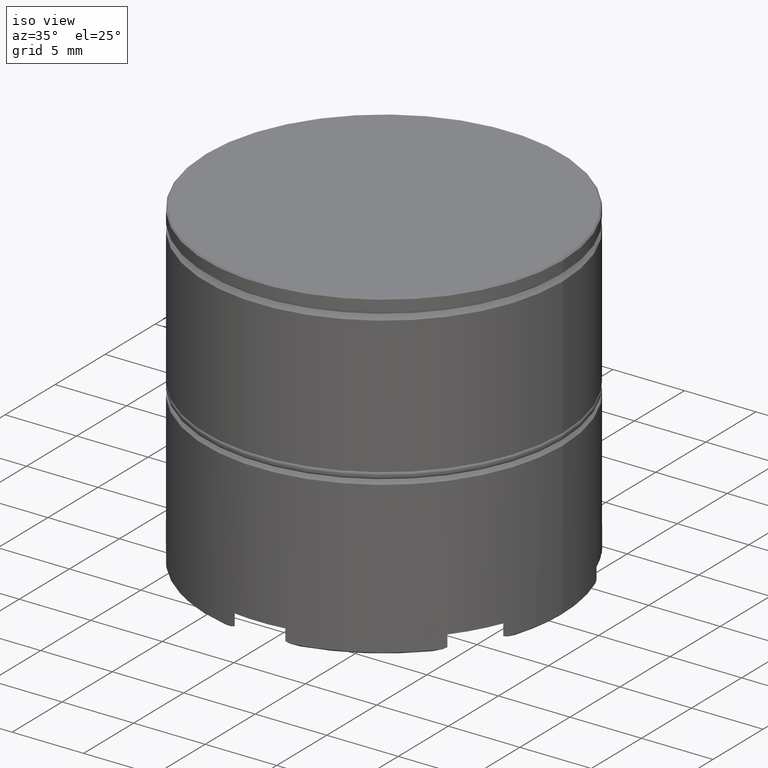
[diagram: clean part render]
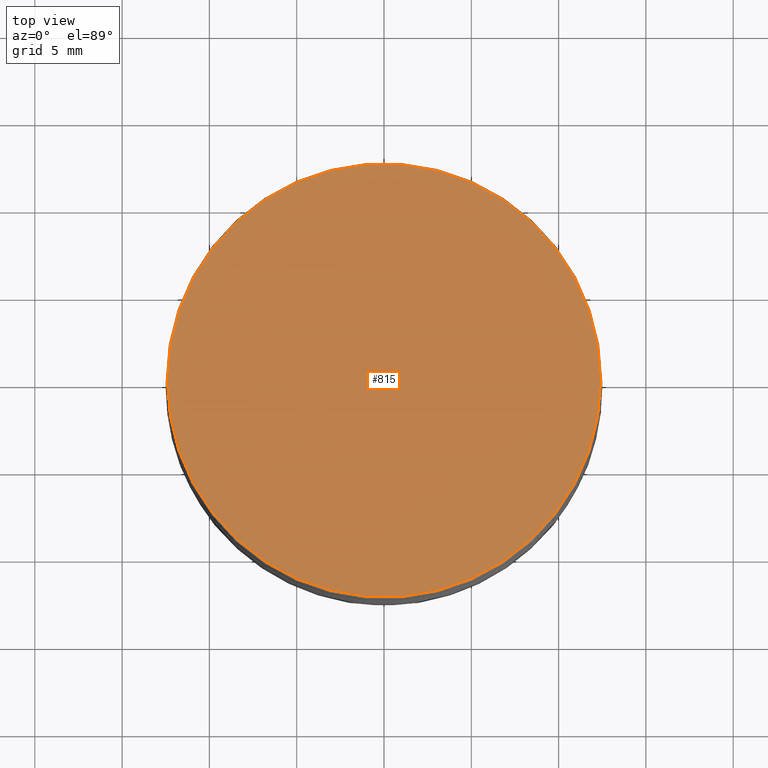
[diagram: tour spotlight — one face highlighted and labeled with its STEP entity id]
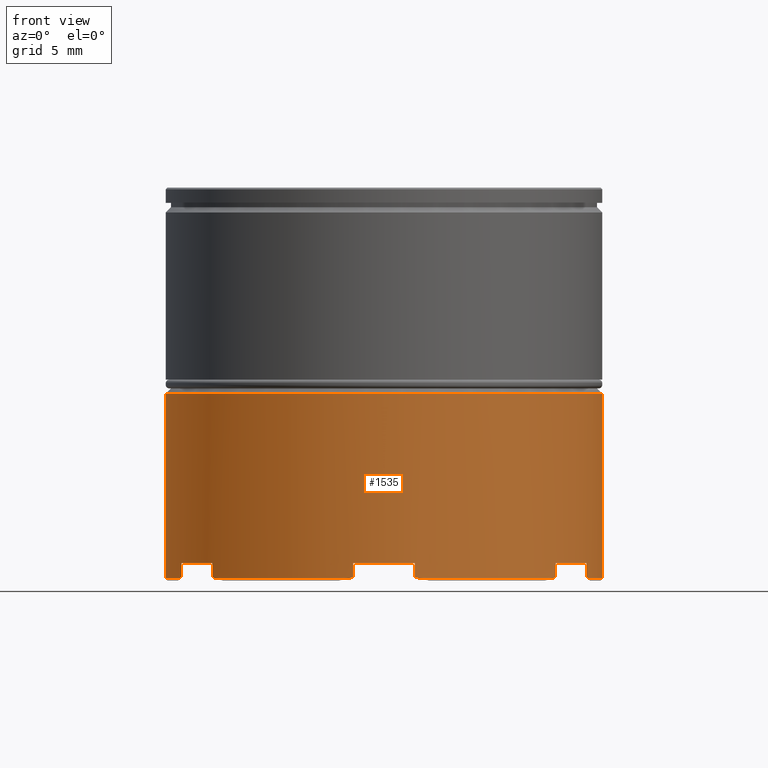
[diagram: tour spotlight — one face highlighted and labeled with its STEP entity id]
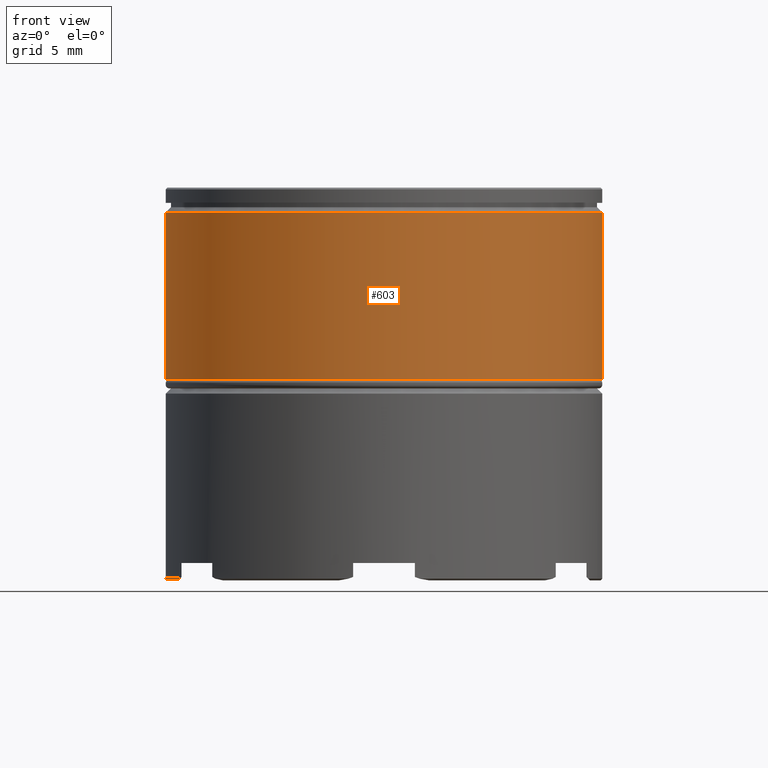
[diagram: tour spotlight — one face highlighted and labeled with its STEP entity id]
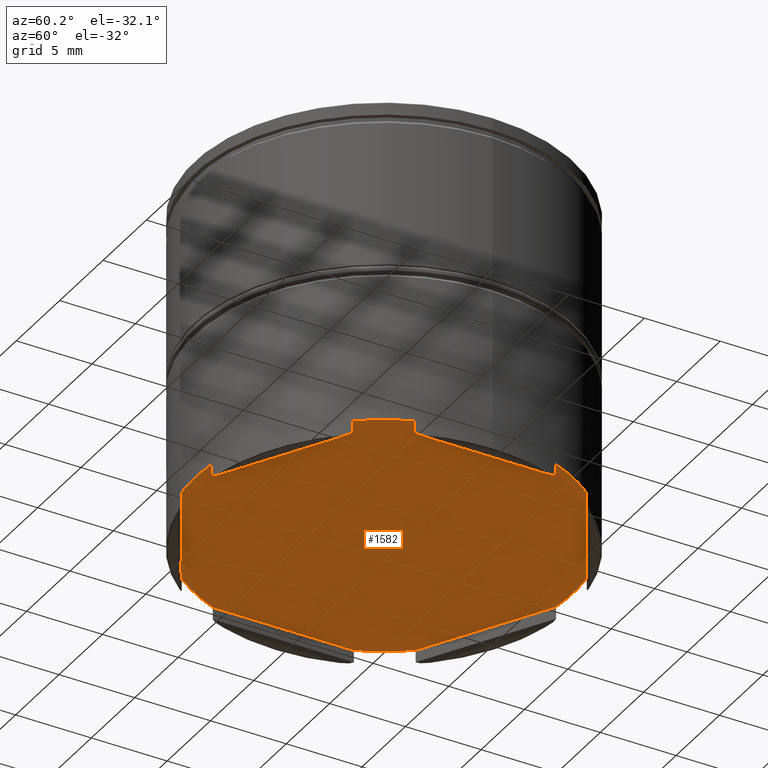
[diagram: tour spotlight — one face highlighted and labeled with its STEP entity id]
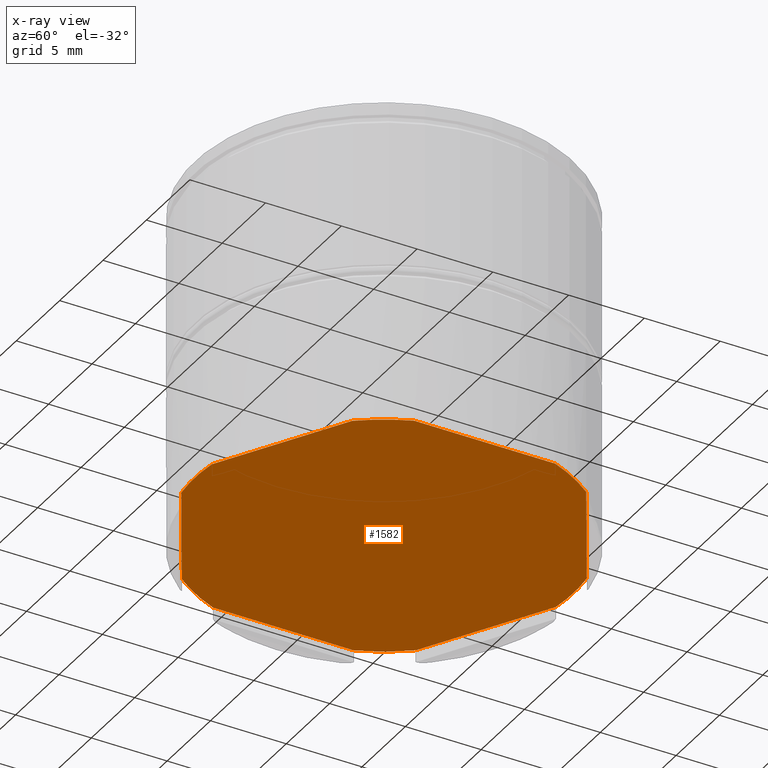
[diagram: x-ray of the same camera — body ghosted, this tour face saturated]
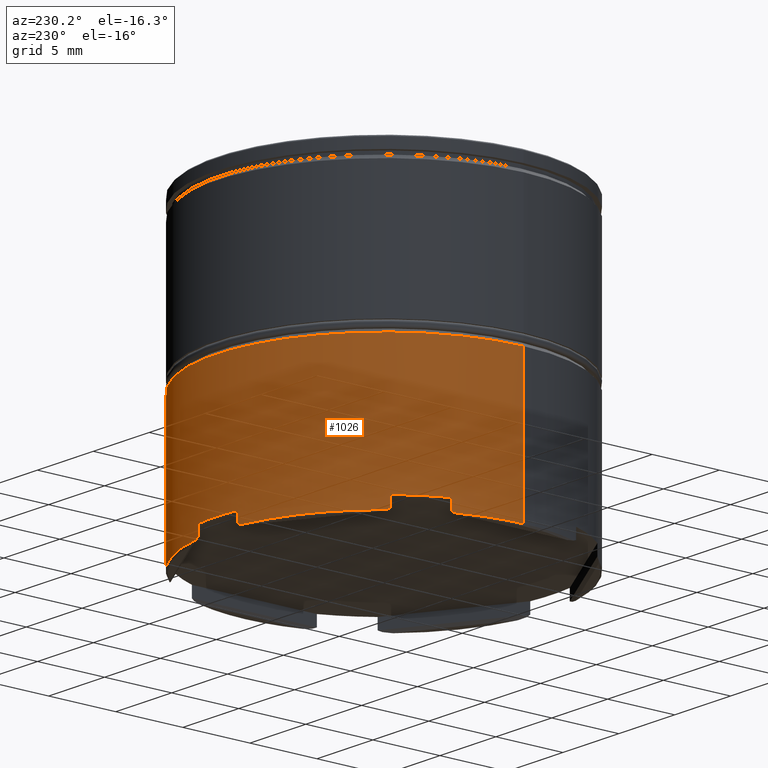
[diagram: tour spotlight — one face highlighted and labeled with its STEP entity id]
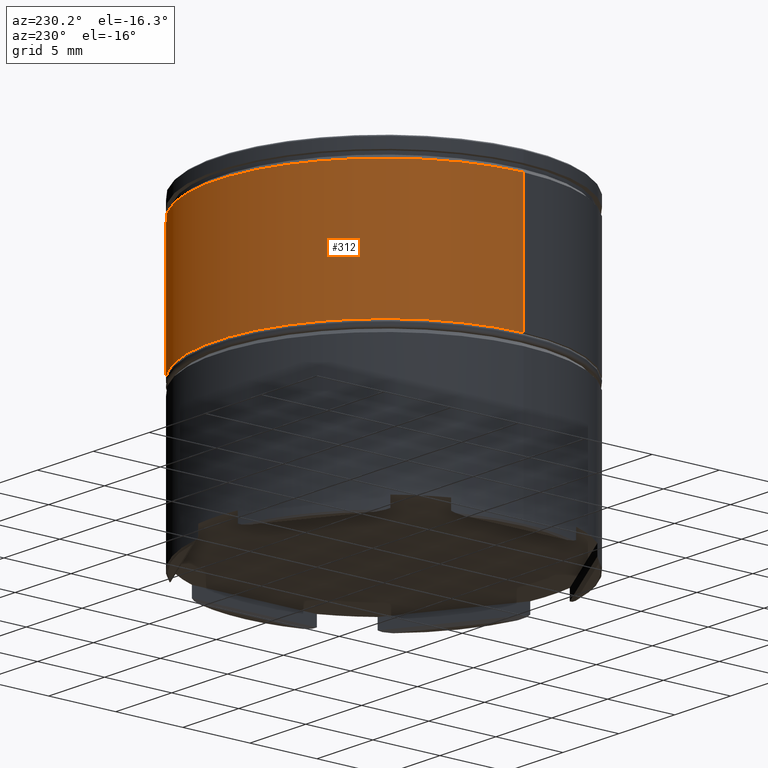
[diagram: tour spotlight — one face highlighted and labeled with its STEP entity id]
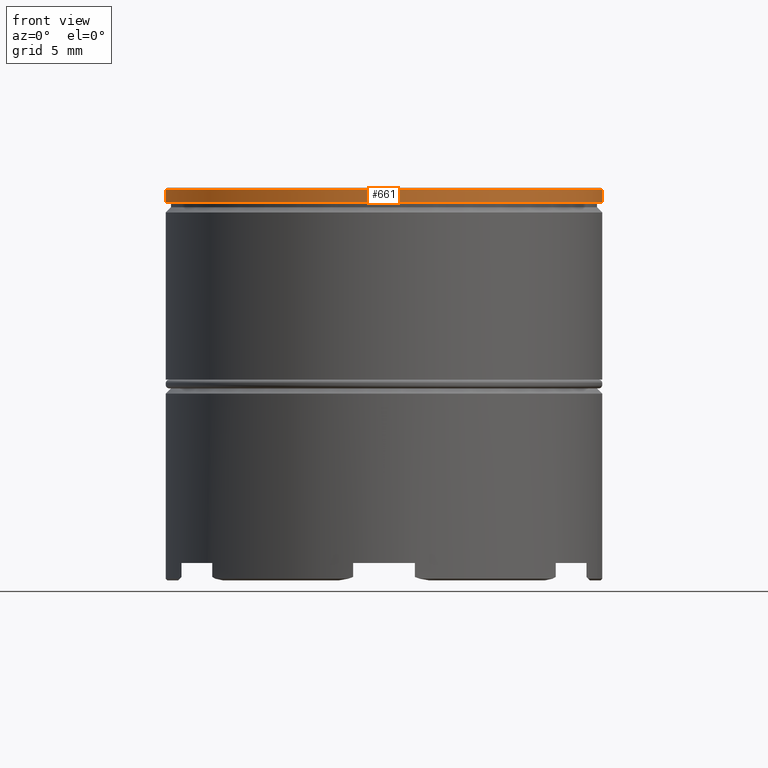
[diagram: tour spotlight — one face highlighted and labeled with its STEP entity id]
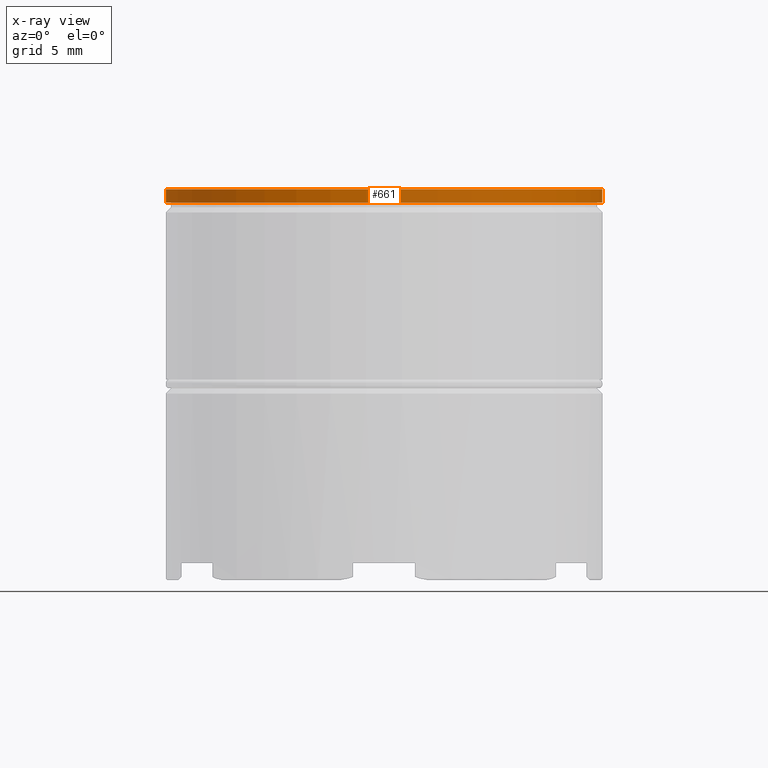
[diagram: x-ray of the same camera — body ghosted, this tour face saturated]
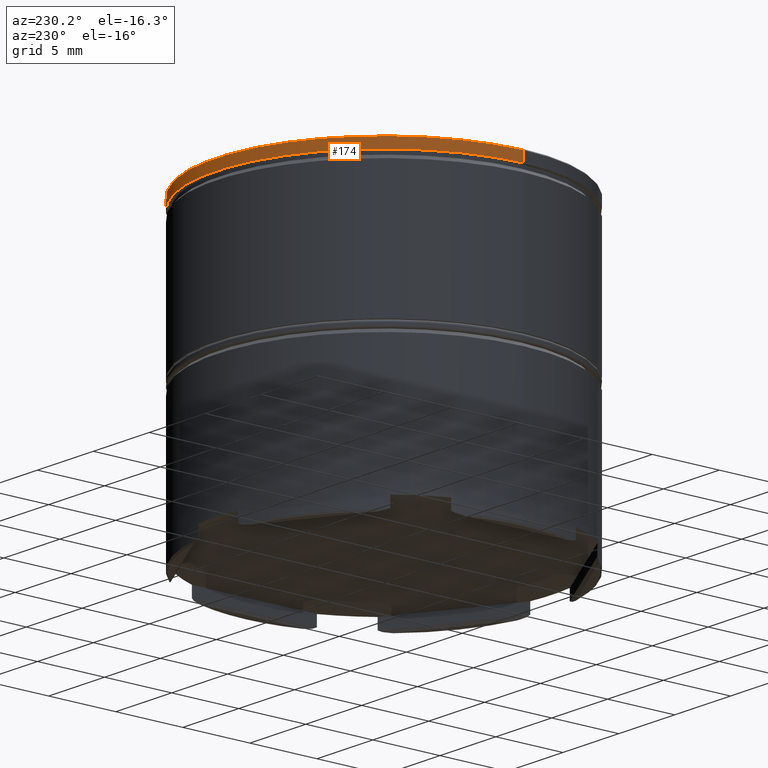
[diagram: tour spotlight — one face highlighted and labeled with its STEP entity id]
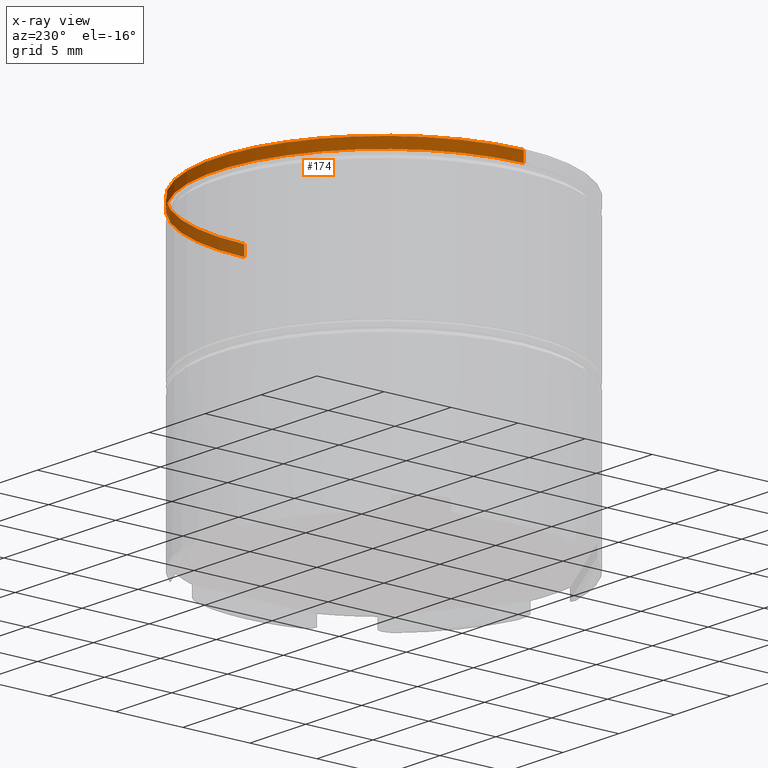
[diagram: x-ray of the same camera — body ghosted, this tour face saturated]
A machine part: a face-by-face anatomy tour. The part has 53 B-rep faces; the first image is the clean iso view, then the 8 largest visible faces are spotlighted one at a time (largest first), each with its STEP entity span.

Face 1 — top view, entity #815. In plain terms, the highlighted planar face has unit normal (0, -0, 1).
Definition (entity closure, byte-faithful):
#4 = VERTEX_POINT ( 'NONE', #904 ) ;
#19 = PLANE ( 'NONE',  #654 ) ;
#46 = DIRECTION ( 'NONE',  ( 1.000000000000000000, 0.000000000000000000, 0.000000000000000000 ) ) ;
#130 = CIRCLE ( 'NONE', #182, 12.39999999999999503 ) ;
#182 = AXIS2_PLACEMENT_3D ( 'NONE', #424, #454, #46 ) ;
#313 = CARTESIAN_POINT ( 'NONE',  ( 12.39999999999999503, 1.524685264938454448E-15, 0.000000000000000000 ) ) ;
#405 = DIRECTION ( 'NONE',  ( 0.000000000000000000, -0.000000000000000000, 1.000000000000000000 ) ) ;
#424 = CARTESIAN_POINT ( 'NONE',  ( 0.000000000000000000, 0.000000000000000000, 0.000000000000000000 ) ) ;
#454 = DIRECTION ( 'NONE',  ( -0.000000000000000000, -0.000000000000000000, 1.000000000000000000 ) ) ;
#462 = CIRCLE ( 'NONE', #784, 12.39999999999999503 ) ;
#524 = DIRECTION ( 'NONE',  ( 1.000000000000000000, 0.000000000000000000, 0.000000000000000000 ) ) ;
#654 = AXIS2_PLACEMENT_3D ( 'NONE', #1533, #405, #914 ) ;
#671 = DIRECTION ( 'NONE',  ( -0.000000000000000000, -0.000000000000000000, 1.000000000000000000 ) ) ;
#769 = EDGE_CURVE ( 'NONE', #1300, #4, #462, .T. ) ;
#784 = AXIS2_PLACEMENT_3D ( 'NONE', #1147, #671, #524 ) ;
#815 = ADVANCED_FACE ( 'NONE', ( #890 ), #19, .T. ) ;
#890 = FACE_OUTER_BOUND ( 'NONE', #1148, .T. ) ;
#900 = EDGE_CURVE ( 'NONE', #4, #1300, #130, .T. ) ;
#904 = CARTESIAN_POINT ( 'NONE',  ( -12.39999999999999503, 0.000000000000000000, 0.000000000000000000 ) ) ;
#914 = DIRECTION ( 'NONE',  ( 1.000000000000000000, 0.000000000000000000, 0.000000000000000000 ) ) ;
#940 = ORIENTED_EDGE ( 'NONE', *, *, #769, .T. ) ;
#1147 = CARTESIAN_POINT ( 'NONE',  ( 0.000000000000000000, 0.000000000000000000, 0.000000000000000000 ) ) ;
#1148 = EDGE_LOOP ( 'NONE', ( #1192, #940 ) ) ;
#1192 = ORIENTED_EDGE ( 'NONE', *, *, #900, .T. ) ;
#1300 = VERTEX_POINT ( 'NONE', #313 ) ;
#1533 = CARTESIAN_POINT ( 'NONE',  ( 0.000000000000000000, 0.000000000000000000, 0.000000000000000000 ) ) ;

Face 2 — front view, entity #1535. In plain terms, the highlighted cylindrical surface (partial cylindrical patch) has radius 12.5 mm, axis along (-0, -0, 1).
Definition (entity closure, byte-faithful):
#17 = ORIENTED_EDGE ( 'NONE', *, *, #1233, .F. ) ;
#28 = EDGE_CURVE ( 'NONE', #685, #1556, #557, .T. ) ;
#32 = VECTOR ( 'NONE', #1176, 1000.000000000000000 ) ;
#48 = ORIENTED_EDGE ( 'NONE', *, *, #250, .T. ) ;
#49 = VECTOR ( 'NONE', #1548, 1000.000000000000000 ) ;
#60 = CARTESIAN_POINT ( 'NONE',  ( -11.69999999999999574, -4.400000000000018119, -22.39999999999999503 ) ) ;
#67 = CARTESIAN_POINT ( 'NONE',  ( -12.50000000000000000, 1.530808498934191521E-15, 0.000000000000000000 ) ) ;
#69 = CARTESIAN_POINT ( 'NONE',  ( 9.776496449465541971, -7.789645831021948297, -22.33427940088132146 ) ) ;
#71 = CARTESIAN_POINT ( 'NONE',  ( -11.66761408860076443, -4.486117082584343940, -22.36761408860076727 ) ) ;
#88 = EDGE_CURVE ( 'NONE', #1135, #362, #1369, .T. ) ;
#91 = CARTESIAN_POINT ( 'NONE',  ( 9.833298897924617421, -7.717268479460498654, -21.50000000000000000 ) ) ;
#93 = ORIENTED_EDGE ( 'NONE', *, *, #592, .F. ) ;
#103 =( BOUNDED_CURVE ( )  B_SPLINE_CURVE ( 3, ( #1578, #934, #1401, #420 ),
 .UNSPECIFIED., .F., .T. ) 
 B_SPLINE_CURVE_WITH_KNOTS ( ( 4, 4 ),
 ( 2.759804799366304628, 2.781885654004836006 ),
 .UNSPECIFIED. ) 
 CURVE ( )  GEOMETRIC_REPRESENTATION_ITEM ( )  RATIONAL_B_SPLINE_CURVE ( ( 1.000000000000000000, 0.9999593700675737384, 0.9999593700675737384, 1.000000000000000000 ) ) 
 REPRESENTATION_ITEM ( '' )  );
#112 = DIRECTION ( 'NONE',  ( 0.000000000000000000, 0.000000000000000000, -1.000000000000000000 ) ) ;
#113 = VERTEX_POINT ( 'NONE', #696 ) ;
#119 = CARTESIAN_POINT ( 'NONE',  ( 2.039488223348465024, -12.33249722427793493, -22.39999999999999503 ) ) ;
#128 = CARTESIAN_POINT ( 'NONE',  ( 0.000000000000000000, 0.000000000000000000, -21.50000000000000000 ) ) ;
#133 = DIRECTION ( 'NONE',  ( -0.000000000000000000, -0.000000000000000000, 1.000000000000000000 ) ) ;
#135 = DIRECTION ( 'NONE',  ( -1.000000000000000000, 0.000000000000000000, 0.000000000000000000 ) ) ;
#140 = DIRECTION ( 'NONE',  ( -0.000000000000000000, -0.000000000000000000, 1.000000000000000000 ) ) ;
#148 = CIRCLE ( 'NONE', #450, 12.50000000000000000 ) ;
#167 =( BOUNDED_CURVE ( )  B_SPLINE_CURVE ( 3, ( #859, #1364, #1130, #1347 ),
 .UNSPECIFIED., .F., .T. ) 
 B_SPLINE_CURVE_WITH_KNOTS ( ( 4, 4 ),
 ( 2.759804799366304628, 2.781885654004836450 ),
 .UNSPECIFIED. ) 
 CURVE ( )  GEOMETRIC_REPRESENTATION_ITEM ( )  RATIONAL_B_SPLINE_CURVE ( ( 1.000000000000000000, 0.9999593700675737384, 0.9999593700675737384, 1.000000000000000000 ) ) 
 REPRESENTATION_ITEM ( '' )  );
#179 = ORIENTED_EDGE ( 'NONE', *, *, #1431, .T. ) ;
#215 = VERTEX_POINT ( 'NONE', #730 ) ;
#238 = CYLINDRICAL_SURFACE ( 'NONE', #932, 12.50000000000000000 ) ;
#241 = ORIENTED_EDGE ( 'NONE', *, *, #930, .T. ) ;
#248 = CARTESIAN_POINT ( 'NONE',  ( 1.766701102075386220, -12.37452088833849295, -21.50000000000000000 ) ) ;
#249 = CARTESIAN_POINT ( 'NONE',  ( 0.000000000000000000, 0.000000000000000000, -22.39999999999999503 ) ) ;
#250 = EDGE_CURVE ( 'NONE', #113, #1371, #1397, .T. ) ;
#252 = VERTEX_POINT ( 'NONE', #1487 ) ;
#258 = ORIENTED_EDGE ( 'NONE', *, *, #565, .F. ) ;
#263 = CARTESIAN_POINT ( 'NONE',  ( 1.766701102075388885, -12.37452088833849118, 0.000000000000000000 ) ) ;
#264 = ORIENTED_EDGE ( 'NONE', *, *, #888, .F. ) ;
#267 = VECTOR ( 'NONE', #112, 1000.000000000000000 ) ;
#272 = LINE ( 'NONE', #263, #607 ) ;
#275 = VERTEX_POINT ( 'NONE', #1477 ) ;
#277 =( BOUNDED_CURVE ( )  B_SPLINE_CURVE ( 3, ( #549, #71, #1588, #564 ),
 .UNSPECIFIED., .F., .T. ) 
 B_SPLINE_CURVE_WITH_KNOTS ( ( 4, 4 ),
 ( 3.501299653174751114, 3.523380507813282048 ),
 .UNSPECIFIED. ) 
 CURVE ( )  GEOMETRIC_REPRESENTATION_ITEM ( )  RATIONAL_B_SPLINE_CURVE ( ( 1.000000000000000000, 0.9999593700675737384, 0.9999593700675737384, 1.000000000000000000 ) ) 
 REPRESENTATION_ITEM ( '' )  );
#281 = DIRECTION ( 'NONE',  ( -0.000000000000000000, -0.000000000000000000, 1.000000000000000000 ) ) ;
#320 = DIRECTION ( 'NONE',  ( -1.000000000000000000, 0.000000000000000000, 0.000000000000000000 ) ) ;
#336 = EDGE_CURVE ( 'NONE', #275, #1617, #1011, .T. ) ;
#337 = CARTESIAN_POINT ( 'NONE',  ( -1.766701102075393104, -12.37452088833849118, -22.29999999999999716 ) ) ;
#341 = ORIENTED_EDGE ( 'NONE', *, *, #612, .T. ) ;
#347 = CARTESIAN_POINT ( 'NONE',  ( 0.000000000000000000, 0.000000000000000000, -11.80000000000000959 ) ) ;
#362 = VERTEX_POINT ( 'NONE', #797 ) ;
#388 = DIRECTION ( 'NONE',  ( -0.000000000000000000, -0.000000000000000000, 1.000000000000000000 ) ) ;
#404 = CARTESIAN_POINT ( 'NONE',  ( 1.766701102075388885, -12.37452088833849118, -22.29999999999999716 ) ) ;
#408 = AXIS2_PLACEMENT_3D ( 'NONE', #639, #633, #1473 ) ;
#420 = CARTESIAN_POINT ( 'NONE',  ( 11.69999999999999929, -4.400000000000012790, -22.39999999999999503 ) ) ;
#423 = CARTESIAN_POINT ( 'NONE',  ( 0.000000000000000000, 0.000000000000000000, -22.39999999999999503 ) ) ;
#426 = VECTOR ( 'NONE', #962, 1000.000000000000000 ) ;
#429 = CARTESIAN_POINT ( 'NONE',  ( -9.833298897924617421, -7.717268479460496877, -22.29999999999999716 ) ) ;
#435 = AXIS2_PLACEMENT_3D ( 'NONE', #128, #1033, #1396 ) ;
#439 = EDGE_CURVE ( 'NONE', #275, #1135, #103, .T. ) ;
#450 = AXIS2_PLACEMENT_3D ( 'NONE', #605, #1448, #320 ) ;
#457 = CARTESIAN_POINT ( 'NONE',  ( -9.833298897924617421, -7.717268479460496877, -22.29999999999999716 ) ) ;
#461 = CARTESIAN_POINT ( 'NONE',  ( 12.50000000000000000, 0.000000000000000000, 0.000000000000000000 ) ) ;
#488 = CARTESIAN_POINT ( 'NONE',  ( 9.660511776651530269, -7.932497224277932801, -22.39999999999999503 ) ) ;
#525 = AXIS2_PLACEMENT_3D ( 'NONE', #249, #895, #1025 ) ;
#549 = CARTESIAN_POINT ( 'NONE',  ( -11.69999999999999574, -4.400000000000018119, -22.39999999999999503 ) ) ;
#553 = CIRCLE ( 'NONE', #408, 12.50000000000000000 ) ;
#557 = CIRCLE ( 'NONE', #1043, 12.50000000000000000 ) ;
#558 = EDGE_CURVE ( 'NONE', #946, #879, #277, .T. ) ;
#560 = CARTESIAN_POINT ( 'NONE',  ( -1.766701102075393104, -12.37452088833849118, -22.29999999999999716 ) ) ;
#564 = CARTESIAN_POINT ( 'NONE',  ( -11.60000000000000497, -4.657252408878002292, -22.30000000000000426 ) ) ;
#565 = EDGE_CURVE ( 'NONE', #1295, #879, #909, .T. ) ;
#577 = VERTEX_POINT ( 'NONE', #337 ) ;
#579 = CARTESIAN_POINT ( 'NONE',  ( 12.50000000000000000, 0.000000000000000000, -11.80000000000000959 ) ) ;
#584 = CARTESIAN_POINT ( 'NONE',  ( -9.776496449465541971, -7.789645831021949185, -22.33427940088132146 ) ) ;
#592 = EDGE_CURVE ( 'NONE', #685, #577, #738, .T. ) ;
#600 = CARTESIAN_POINT ( 'NONE',  ( -9.660511776651530269, -7.932497224277932801, -22.39999999999999503 ) ) ;
#605 = CARTESIAN_POINT ( 'NONE',  ( 0.000000000000000000, 0.000000000000000000, -22.39999999999999503 ) ) ;
#607 = VECTOR ( 'NONE', #133, 1000.000000000000000 ) ;
#612 = EDGE_CURVE ( 'NONE', #761, #113, #553, .T. ) ;
#626 = ORIENTED_EDGE ( 'NONE', *, *, #1294, .T. ) ;
#633 = DIRECTION ( 'NONE',  ( -0.000000000000000000, -0.000000000000000000, 1.000000000000000000 ) ) ;
#637 = VERTEX_POINT ( 'NONE', #91 ) ;
#639 = CARTESIAN_POINT ( 'NONE',  ( 0.000000000000000000, 0.000000000000000000, -22.39999999999999503 ) ) ;
#645 = ORIENTED_EDGE ( 'NONE', *, *, #336, .F. ) ;
#653 = DIRECTION ( 'NONE',  ( -0.000000000000000000, -0.000000000000000000, 1.000000000000000000 ) ) ;
#685 = VERTEX_POINT ( 'NONE', #723 ) ;
#688 = CARTESIAN_POINT ( 'NONE',  ( -2.039488223348482787, -12.33249722427793138, -22.39999999999999503 ) ) ;
#690 = CARTESIAN_POINT ( 'NONE',  ( 0.000000000000000000, 0.000000000000000000, -21.50000000000000000 ) ) ;
#691 =( BOUNDED_CURVE ( )  B_SPLINE_CURVE ( 3, ( #457, #584, #1114, #600 ),
 .UNSPECIFIED., .F., .T. ) 
 B_SPLINE_CURVE_WITH_KNOTS ( ( 4, 4 ),
 ( 2.759804799366304628, 2.781885654004837338 ),
 .UNSPECIFIED. ) 
 CURVE ( )  GEOMETRIC_REPRESENTATION_ITEM ( )  RATIONAL_B_SPLINE_CURVE ( ( 1.000000000000000000, 0.9999593700675737384, 0.9999593700675737384, 1.000000000000000000 ) ) 
 REPRESENTATION_ITEM ( '' )  );
#696 = CARTESIAN_POINT ( 'NONE',  ( 9.660511776651530269, -7.932497224277932801, -22.39999999999999503 ) ) ;
#697 = DIRECTION ( 'NONE',  ( -1.000000000000000000, 0.000000000000000000, 0.000000000000000000 ) ) ;
#712 = CARTESIAN_POINT ( 'NONE',  ( -12.50000000000000000, 1.530808498934191521E-15, -11.80000000000000959 ) ) ;
#718 = AXIS2_PLACEMENT_3D ( 'NONE', #347, #1221, #839 ) ;
#723 = CARTESIAN_POINT ( 'NONE',  ( -1.766701102075380891, -12.37452088833849118, -21.50000000000000000 ) ) ;
#730 = CARTESIAN_POINT ( 'NONE',  ( -12.50000000000000000, 1.530808498934191521E-15, -22.39999999999999503 ) ) ;
#733 = ORIENTED_EDGE ( 'NONE', *, *, #1420, .F. ) ;
#738 = LINE ( 'NONE', #747, #267 ) ;
#739 = ORIENTED_EDGE ( 'NONE', *, *, #439, .T. ) ;
#747 = CARTESIAN_POINT ( 'NONE',  ( -1.766701102075393104, -12.37452088833849118, 0.000000000000000000 ) ) ;
#754 = AXIS2_PLACEMENT_3D ( 'NONE', #690, #1203, #697 ) ;
#760 = EDGE_CURVE ( 'NONE', #252, #770, #1481, .T. ) ;
#761 = VERTEX_POINT ( 'NONE', #119 ) ;
#767 = EDGE_LOOP ( 'NONE', ( #733, #1133, #983, #258, #241, #1475, #1020, #1466, #626, #93, #1359, #17, #1605, #341, #48, #264, #886, #645, #739, #1433, #179, #1581 ) ) ;
#770 = VERTEX_POINT ( 'NONE', #1283 ) ;
#780 = EDGE_CURVE ( 'NONE', #637, #1617, #1454, .T. ) ;
#794 = FACE_OUTER_BOUND ( 'NONE', #767, .T. ) ;
#797 = CARTESIAN_POINT ( 'NONE',  ( 12.50000000000000000, 0.000000000000000000, -22.39999999999999503 ) ) ;
#819 = CARTESIAN_POINT ( 'NONE',  ( -9.833298897924617421, -7.717268479460496877, 0.000000000000000000 ) ) ;
#839 = DIRECTION ( 'NONE',  ( 1.000000000000000000, 0.000000000000000000, 0.000000000000000000 ) ) ;
#859 = CARTESIAN_POINT ( 'NONE',  ( 1.766701102075388885, -12.37452088833849118, -22.29999999999999716 ) ) ;
#879 = VERTEX_POINT ( 'NONE', #1080 ) ;
#885 = VECTOR ( 'NONE', #1430, 1000.000000000000000 ) ;
#886 = ORIENTED_EDGE ( 'NONE', *, *, #780, .T. ) ;
#888 = EDGE_CURVE ( 'NONE', #637, #1371, #1422, .T. ) ;
#891 = VERTEX_POINT ( 'NONE', #429 ) ;
#895 = DIRECTION ( 'NONE',  ( -0.000000000000000000, -0.000000000000000000, 1.000000000000000000 ) ) ;
#905 = CARTESIAN_POINT ( 'NONE',  ( 0.000000000000000000, 0.000000000000000000, 0.000000000000000000 ) ) ;
#909 = LINE ( 'NONE', #1052, #49 ) ;
#916 = VECTOR ( 'NONE', #140, 1000.000000000000000 ) ;
#930 = EDGE_CURVE ( 'NONE', #1295, #1500, #1266, .T. ) ;
#932 = AXIS2_PLACEMENT_3D ( 'NONE', #905, #388, #1506 ) ;
#934 = CARTESIAN_POINT ( 'NONE',  ( 11.63427940088132395, -4.571871369734558321, -22.33427940088132146 ) ) ;
#946 = VERTEX_POINT ( 'NONE', #60 ) ;
#962 = DIRECTION ( 'NONE',  ( -0.000000000000000000, -0.000000000000000000, 1.000000000000000000 ) ) ;
#963 = EDGE_CURVE ( 'NONE', #891, #1500, #1321, .T. ) ;
#964 = CARTESIAN_POINT ( 'NONE',  ( 9.718898402169749318, -7.861391660989317742, -22.36761408860076372 ) ) ;
#980 = AXIS2_PLACEMENT_3D ( 'NONE', #423, #281, #1413 ) ;
#983 = ORIENTED_EDGE ( 'NONE', *, *, #558, .T. ) ;
#1011 = LINE ( 'NONE', #1403, #916 ) ;
#1020 = ORIENTED_EDGE ( 'NONE', *, *, #1635, .T. ) ;
#1025 = DIRECTION ( 'NONE',  ( -1.000000000000000000, 0.000000000000000000, 0.000000000000000000 ) ) ;
#1033 = DIRECTION ( 'NONE',  ( -0.000000000000000000, -0.000000000000000000, 1.000000000000000000 ) ) ;
#1043 = AXIS2_PLACEMENT_3D ( 'NONE', #1154, #653, #135 ) ;
#1044 = VERTEX_POINT ( 'NONE', #712 ) ;
#1052 = CARTESIAN_POINT ( 'NONE',  ( -11.60000000000000497, -4.657252408878002292, 0.000000000000000000 ) ) ;
#1080 = CARTESIAN_POINT ( 'NONE',  ( -11.60000000000000497, -4.657252408878002292, -22.30000000000000426 ) ) ;
#1100 = DIRECTION ( 'NONE',  ( -0.000000000000000000, -0.000000000000000000, 1.000000000000000000 ) ) ;
#1101 = EDGE_CURVE ( 'NONE', #1519, #761, #167, .T. ) ;
#1114 = CARTESIAN_POINT ( 'NONE',  ( -9.718898402169747541, -7.861391660989324848, -22.36761408860076727 ) ) ;
#1130 = CARTESIAN_POINT ( 'NONE',  ( 1.948715686431013339, -12.34750874357364836, -22.36761408860076372 ) ) ;
#1133 = ORIENTED_EDGE ( 'NONE', *, *, #1412, .T. ) ;
#1135 = VERTEX_POINT ( 'NONE', #1254 ) ;
#1138 = CARTESIAN_POINT ( 'NONE',  ( -9.833298897924624526, -7.717268479460486219, -21.50000000000000000 ) ) ;
#1154 = CARTESIAN_POINT ( 'NONE',  ( 0.000000000000000000, 0.000000000000000000, -21.50000000000000000 ) ) ;
#1176 = DIRECTION ( 'NONE',  ( -0.000000000000000000, -0.000000000000000000, 1.000000000000000000 ) ) ;
#1186 = CARTESIAN_POINT ( 'NONE',  ( -1.948715686431031102, -12.34750874357364836, -22.36761408860076727 ) ) ;
#1190 = CARTESIAN_POINT ( 'NONE',  ( 9.833298897924615645, -7.717268479460500430, 0.000000000000000000 ) ) ;
#1203 = DIRECTION ( 'NONE',  ( -0.000000000000000000, -0.000000000000000000, 1.000000000000000000 ) ) ;
#1218 = LINE ( 'NONE', #461, #426 ) ;
#1221 = DIRECTION ( 'NONE',  ( 0.000000000000000000, 0.000000000000000000, -1.000000000000000000 ) ) ;
#1225 = CARTESIAN_POINT ( 'NONE',  ( 9.833298897924615645, -7.717268479460500430, -22.29999999999999716 ) ) ;
#1233 = EDGE_CURVE ( 'NONE', #1519, #1556, #272, .T. ) ;
#1254 = CARTESIAN_POINT ( 'NONE',  ( 11.69999999999999929, -4.400000000000012790, -22.39999999999999503 ) ) ;
#1266 = CIRCLE ( 'NONE', #754, 12.50000000000000000 ) ;
#1281 = CARTESIAN_POINT ( 'NONE',  ( -11.60000000000000497, -4.657252408878002292, -21.50000000000000000 ) ) ;
#1283 = CARTESIAN_POINT ( 'NONE',  ( -2.039488223348482787, -12.33249722427793138, -22.39999999999999503 ) ) ;
#1288 = CARTESIAN_POINT ( 'NONE',  ( 9.833298897924615645, -7.717268479460500430, -22.29999999999999716 ) ) ;
#1294 = EDGE_CURVE ( 'NONE', #770, #577, #1348, .T. ) ;
#1295 = VERTEX_POINT ( 'NONE', #1281 ) ;
#1321 = LINE ( 'NONE', #819, #32 ) ;
#1324 = VERTEX_POINT ( 'NONE', #579 ) ;
#1347 = CARTESIAN_POINT ( 'NONE',  ( 2.039488223348465024, -12.33249722427793493, -22.39999999999999503 ) ) ;
#1348 =( BOUNDED_CURVE ( )  B_SPLINE_CURVE ( 3, ( #688, #1186, #1427, #560 ),
 .UNSPECIFIED., .F., .T. ) 
 B_SPLINE_CURVE_WITH_KNOTS ( ( 4, 4 ),
 ( 3.501299653174748894, 3.523380507813281604 ),
 .UNSPECIFIED. ) 
 CURVE ( )  GEOMETRIC_REPRESENTATION_ITEM ( )  RATIONAL_B_SPLINE_CURVE ( ( 1.000000000000000000, 0.9999593700675737384, 0.9999593700675737384, 1.000000000000000000 ) ) 
 REPRESENTATION_ITEM ( '' )  );
#1359 = ORIENTED_EDGE ( 'NONE', *, *, #28, .T. ) ;
#1364 = CARTESIAN_POINT ( 'NONE',  ( 1.857782951415775763, -12.36151720075650395, -22.33427940088132146 ) ) ;
#1369 = CIRCLE ( 'NONE', #980, 12.50000000000000000 ) ;
#1371 = VERTEX_POINT ( 'NONE', #1288 ) ;
#1396 = DIRECTION ( 'NONE',  ( -1.000000000000000000, 0.000000000000000000, 0.000000000000000000 ) ) ;
#1397 =( BOUNDED_CURVE ( )  B_SPLINE_CURVE ( 3, ( #488, #964, #69, #1225 ),
 .UNSPECIFIED., .F., .T. ) 
 B_SPLINE_CURVE_WITH_KNOTS ( ( 4, 4 ),
 ( 3.501299653174750226, 3.523380507813281604 ),
 .UNSPECIFIED. ) 
 CURVE ( )  GEOMETRIC_REPRESENTATION_ITEM ( )  RATIONAL_B_SPLINE_CURVE ( ( 1.000000000000000000, 0.9999593700675737384, 0.9999593700675737384, 1.000000000000000000 ) ) 
 REPRESENTATION_ITEM ( '' )  );
#1401 = CARTESIAN_POINT ( 'NONE',  ( 11.66761408860076799, -4.486117082584336835, -22.36761408860077438 ) ) ;
#1403 = CARTESIAN_POINT ( 'NONE',  ( 11.60000000000000497, -4.657252408878000516, 0.000000000000000000 ) ) ;
#1412 = EDGE_CURVE ( 'NONE', #215, #946, #148, .T. ) ;
#1413 = DIRECTION ( 'NONE',  ( -1.000000000000000000, 3.552713678800500929E-15, 0.000000000000000000 ) ) ;
#1418 = VECTOR ( 'NONE', #1100, 1000.000000000000000 ) ;
#1420 = EDGE_CURVE ( 'NONE', #215, #1044, #1592, .T. ) ;
#1422 = LINE ( 'NONE', #1190, #885 ) ;
#1427 = CARTESIAN_POINT ( 'NONE',  ( -1.857782951415788641, -12.36151720075650395, -22.33427940088132146 ) ) ;
#1430 = DIRECTION ( 'NONE',  ( 0.000000000000000000, 0.000000000000000000, -1.000000000000000000 ) ) ;
#1431 = EDGE_CURVE ( 'NONE', #362, #1324, #1218, .T. ) ;
#1433 = ORIENTED_EDGE ( 'NONE', *, *, #88, .T. ) ;
#1448 = DIRECTION ( 'NONE',  ( -0.000000000000000000, -0.000000000000000000, 1.000000000000000000 ) ) ;
#1454 = CIRCLE ( 'NONE', #435, 12.50000000000000000 ) ;
#1466 = ORIENTED_EDGE ( 'NONE', *, *, #760, .T. ) ;
#1473 = DIRECTION ( 'NONE',  ( -1.000000000000000000, 8.881784197001252323E-16, 0.000000000000000000 ) ) ;
#1475 = ORIENTED_EDGE ( 'NONE', *, *, #963, .F. ) ;
#1477 = CARTESIAN_POINT ( 'NONE',  ( 11.60000000000000497, -4.657252408878000516, -22.30000000000000426 ) ) ;
#1481 = CIRCLE ( 'NONE', #525, 12.50000000000000000 ) ;
#1487 = CARTESIAN_POINT ( 'NONE',  ( -9.660511776651530269, -7.932497224277932801, -22.39999999999999503 ) ) ;
#1495 = CIRCLE ( 'NONE', #718, 12.50000000000000000 ) ;
#1500 = VERTEX_POINT ( 'NONE', #1138 ) ;
#1506 = DIRECTION ( 'NONE',  ( 1.000000000000000000, 0.000000000000000000, 0.000000000000000000 ) ) ;
#1519 = VERTEX_POINT ( 'NONE', #404 ) ;
#1535 = ADVANCED_FACE ( 'NONE', ( #794 ), #238, .T. ) ;
#1548 = DIRECTION ( 'NONE',  ( 0.000000000000000000, 0.000000000000000000, -1.000000000000000000 ) ) ;
#1556 = VERTEX_POINT ( 'NONE', #248 ) ;
#1578 = CARTESIAN_POINT ( 'NONE',  ( 11.60000000000000497, -4.657252408878000516, -22.30000000000000426 ) ) ;
#1580 = CARTESIAN_POINT ( 'NONE',  ( 11.60000000000000497, -4.657252408878000516, -21.50000000000000000 ) ) ;
#1581 = ORIENTED_EDGE ( 'NONE', *, *, #1612, .T. ) ;
#1588 = CARTESIAN_POINT ( 'NONE',  ( -11.63427940088132040, -4.571871369734563650, -22.33427940088132146 ) ) ;
#1592 = LINE ( 'NONE', #67, #1418 ) ;
#1605 = ORIENTED_EDGE ( 'NONE', *, *, #1101, .T. ) ;
#1612 = EDGE_CURVE ( 'NONE', #1324, #1044, #1495, .T. ) ;
#1617 = VERTEX_POINT ( 'NONE', #1580 ) ;
#1635 = EDGE_CURVE ( 'NONE', #891, #252, #691, .T. ) ;

Face 3 — front view, entity #603. In plain terms, the highlighted cylindrical surface (partial cylindrical patch) has radius 12.5 mm, axis along (-0, -0, 1).
Definition (entity closure, byte-faithful):
#3 = DIRECTION ( 'NONE',  ( -0.000000000000000000, -0.000000000000000000, 1.000000000000000000 ) ) ;
#23 = AXIS2_PLACEMENT_3D ( 'NONE', #953, #833, #1319 ) ;
#58 = DIRECTION ( 'NONE',  ( -0.000000000000000000, -0.000000000000000000, 1.000000000000000000 ) ) ;
#100 = DIRECTION ( 'NONE',  ( 1.000000000000000000, 0.000000000000000000, 0.000000000000000000 ) ) ;
#134 = EDGE_CURVE ( 'NONE', #501, #1318, #580, .T. ) ;
#170 = ORIENTED_EDGE ( 'NONE', *, *, #134, .T. ) ;
#240 = VECTOR ( 'NONE', #3, 1000.000000000000000 ) ;
#296 = DIRECTION ( 'NONE',  ( 1.000000000000000000, 0.000000000000000000, 0.000000000000000000 ) ) ;
#339 = VERTEX_POINT ( 'NONE', #368 ) ;
#353 = CIRCLE ( 'NONE', #527, 12.50000000000000000 ) ;
#368 = CARTESIAN_POINT ( 'NONE',  ( -12.50000000000000000, 1.530808498934191521E-15, -11.00000000000000000 ) ) ;
#382 = AXIS2_PLACEMENT_3D ( 'NONE', #977, #1234, #100 ) ;
#492 = FACE_OUTER_BOUND ( 'NONE', #924, .T. ) ;
#501 = VERTEX_POINT ( 'NONE', #598 ) ;
#527 = AXIS2_PLACEMENT_3D ( 'NONE', #1544, #58, #296 ) ;
#580 = LINE ( 'NONE', #1057, #1426 ) ;
#598 = CARTESIAN_POINT ( 'NONE',  ( 12.50000000000000000, 0.000000000000000000, -11.00000000000000000 ) ) ;
#603 = ADVANCED_FACE ( 'NONE', ( #492 ), #877, .T. ) ;
#744 = EDGE_CURVE ( 'NONE', #339, #1334, #1005, .T. ) ;
#833 = DIRECTION ( 'NONE',  ( 0.000000000000000000, 0.000000000000000000, -1.000000000000000000 ) ) ;
#877 = CYLINDRICAL_SURFACE ( 'NONE', #382, 12.50000000000000000 ) ;
#924 = EDGE_LOOP ( 'NONE', ( #1408, #1222, #170, #1098 ) ) ;
#953 = CARTESIAN_POINT ( 'NONE',  ( 0.000000000000000000, 0.000000000000000000, -1.425000000000010481 ) ) ;
#977 = CARTESIAN_POINT ( 'NONE',  ( 0.000000000000000000, 0.000000000000000000, 0.000000000000000000 ) ) ;
#1005 = LINE ( 'NONE', #1518, #240 ) ;
#1057 = CARTESIAN_POINT ( 'NONE',  ( 12.50000000000000000, 0.000000000000000000, 0.000000000000000000 ) ) ;
#1077 = CARTESIAN_POINT ( 'NONE',  ( -12.50000000000000000, 1.530808498934191521E-15, -1.425000000000010481 ) ) ;
#1098 = ORIENTED_EDGE ( 'NONE', *, *, #1439, .T. ) ;
#1173 = CARTESIAN_POINT ( 'NONE',  ( 12.50000000000000000, 0.000000000000000000, -1.425000000000010481 ) ) ;
#1222 = ORIENTED_EDGE ( 'NONE', *, *, #1322, .T. ) ;
#1234 = DIRECTION ( 'NONE',  ( -0.000000000000000000, -0.000000000000000000, 1.000000000000000000 ) ) ;
#1291 = DIRECTION ( 'NONE',  ( -0.000000000000000000, -0.000000000000000000, 1.000000000000000000 ) ) ;
#1318 = VERTEX_POINT ( 'NONE', #1173 ) ;
#1319 = DIRECTION ( 'NONE',  ( 1.000000000000000000, 0.000000000000000000, 0.000000000000000000 ) ) ;
#1322 = EDGE_CURVE ( 'NONE', #339, #501, #353, .T. ) ;
#1334 = VERTEX_POINT ( 'NONE', #1077 ) ;
#1408 = ORIENTED_EDGE ( 'NONE', *, *, #744, .F. ) ;
#1426 = VECTOR ( 'NONE', #1291, 1000.000000000000000 ) ;
#1439 = EDGE_CURVE ( 'NONE', #1318, #1334, #1442, .T. ) ;
#1442 = CIRCLE ( 'NONE', #23, 12.50000000000000000 ) ;
#1518 = CARTESIAN_POINT ( 'NONE',  ( -12.50000000000000000, 1.530808498934191521E-15, 0.000000000000000000 ) ) ;
#1544 = CARTESIAN_POINT ( 'NONE',  ( 0.000000000000000000, 0.000000000000000000, -11.00000000000000000 ) ) ;

Face 4 — auxiliary view, entity #1582. An x-ray twin of the same camera follows (body ghosted, this face saturated) — the face is partly hidden behind the body. In plain terms, the highlighted planar face has unit normal (0, 0, -1).
Definition (entity closure, byte-faithful):
#18 = FACE_OUTER_BOUND ( 'NONE', #968, .T. ) ;
#26 = CARTESIAN_POINT ( 'NONE',  ( 0.000000000000000000, 0.000000000000000000, -21.50000000000000000 ) ) ;
#28 = EDGE_CURVE ( 'NONE', #685, #1556, #557, .T. ) ;
#53 = LINE ( 'NONE', #168, #487 ) ;
#68 = CIRCLE ( 'NONE', #1078, 12.50000000000000000 ) ;
#74 = EDGE_CURVE ( 'NONE', #1295, #1432, #572, .T. ) ;
#80 = ORIENTED_EDGE ( 'NONE', *, *, #1109, .T. ) ;
#91 = CARTESIAN_POINT ( 'NONE',  ( 9.833298897924617421, -7.717268479460498654, -21.50000000000000000 ) ) ;
#114 = EDGE_CURVE ( 'NONE', #372, #870, #53, .T. ) ;
#128 = CARTESIAN_POINT ( 'NONE',  ( 0.000000000000000000, 0.000000000000000000, -21.50000000000000000 ) ) ;
#131 = ORIENTED_EDGE ( 'NONE', *, *, #823, .F. ) ;
#135 = DIRECTION ( 'NONE',  ( -1.000000000000000000, 0.000000000000000000, 0.000000000000000000 ) ) ;
#142 = AXIS2_PLACEMENT_3D ( 'NONE', #26, #441, #1438 ) ;
#168 = CARTESIAN_POINT ( 'NONE',  ( -11.60000000000000675, 6.697263122599663276, -21.50000000000000000 ) ) ;
#171 = ORIENTED_EDGE ( 'NONE', *, *, #428, .T. ) ;
#190 = ORIENTED_EDGE ( 'NONE', *, *, #1603, .F. ) ;
#214 = ORIENTED_EDGE ( 'NONE', *, *, #1204, .T. ) ;
#217 = CARTESIAN_POINT ( 'NONE',  ( 0.000000000000000000, 0.000000000000000000, -21.50000000000000000 ) ) ;
#248 = CARTESIAN_POINT ( 'NONE',  ( 1.766701102075386220, -12.37452088833849295, -21.50000000000000000 ) ) ;
#255 = ORIENTED_EDGE ( 'NONE', *, *, #303, .F. ) ;
#274 = DIRECTION ( 'NONE',  ( -0.000000000000000000, -0.000000000000000000, 1.000000000000000000 ) ) ;
#297 = VECTOR ( 'NONE', #1038, 1000.000000000000000 ) ;
#303 = EDGE_CURVE ( 'NONE', #617, #1325, #521, .T. ) ;
#306 = CARTESIAN_POINT ( 'NONE',  ( -11.60000000000000497, -6.697263122599659724, -21.50000000000000000 ) ) ;
#309 = ORIENTED_EDGE ( 'NONE', *, *, #114, .T. ) ;
#365 = ORIENTED_EDGE ( 'NONE', *, *, #28, .F. ) ;
#369 = CARTESIAN_POINT ( 'NONE',  ( -1.732057020203453864E-15, -13.39452624519932300, -21.50000000000000000 ) ) ;
#371 = LINE ( 'NONE', #1242, #1065 ) ;
#372 = VERTEX_POINT ( 'NONE', #872 ) ;
#400 = VERTEX_POINT ( 'NONE', #999 ) ;
#401 = CARTESIAN_POINT ( 'NONE',  ( 0.000000000000000000, 13.39452624519932122, -21.50000000000000000 ) ) ;
#403 = CARTESIAN_POINT ( 'NONE',  ( 11.60000000000000497, 6.697263122599659724, -21.50000000000000000 ) ) ;
#419 = CARTESIAN_POINT ( 'NONE',  ( 0.000000000000000000, 0.000000000000000000, -21.50000000000000000 ) ) ;
#428 = EDGE_CURVE ( 'NONE', #400, #1325, #1530, .T. ) ;
#431 = VECTOR ( 'NONE', #1353, 1000.000000000000227 ) ;
#435 = AXIS2_PLACEMENT_3D ( 'NONE', #128, #1033, #1396 ) ;
#441 = DIRECTION ( 'NONE',  ( 0.000000000000000000, 0.000000000000000000, -1.000000000000000000 ) ) ;
#472 = CARTESIAN_POINT ( 'NONE',  ( -11.60000000000000497, 4.657252408877998739, -21.50000000000000000 ) ) ;
#473 = DIRECTION ( 'NONE',  ( -1.000000000000000000, 0.000000000000000000, 0.000000000000000000 ) ) ;
#487 = VECTOR ( 'NONE', #929, 1000.000000000000000 ) ;
#521 = CIRCLE ( 'NONE', #806, 12.50000000000000000 ) ;
#542 = PLANE ( 'NONE',  #142 ) ;
#557 = CIRCLE ( 'NONE', #1043, 12.50000000000000000 ) ;
#562 = CARTESIAN_POINT ( 'NONE',  ( -1.766701102075377561, 12.37452088833849295, -21.50000000000000000 ) ) ;
#572 = LINE ( 'NONE', #306, #1610 ) ;
#582 = EDGE_CURVE ( 'NONE', #637, #1556, #371, .T. ) ;
#617 = VERTEX_POINT ( 'NONE', #1621 ) ;
#629 = AXIS2_PLACEMENT_3D ( 'NONE', #1407, #274, #795 ) ;
#637 = VERTEX_POINT ( 'NONE', #91 ) ;
#647 = ORIENTED_EDGE ( 'NONE', *, *, #780, .F. ) ;
#649 = ORIENTED_EDGE ( 'NONE', *, *, #74, .T. ) ;
#651 = LINE ( 'NONE', #403, #297 ) ;
#653 = DIRECTION ( 'NONE',  ( -0.000000000000000000, -0.000000000000000000, 1.000000000000000000 ) ) ;
#685 = VERTEX_POINT ( 'NONE', #723 ) ;
#690 = CARTESIAN_POINT ( 'NONE',  ( 0.000000000000000000, 0.000000000000000000, -21.50000000000000000 ) ) ;
#697 = DIRECTION ( 'NONE',  ( -1.000000000000000000, 0.000000000000000000, 0.000000000000000000 ) ) ;
#704 = CARTESIAN_POINT ( 'NONE',  ( 9.833298897924624526, 7.717268479460488884, -21.50000000000000000 ) ) ;
#723 = CARTESIAN_POINT ( 'NONE',  ( -1.766701102075380891, -12.37452088833849118, -21.50000000000000000 ) ) ;
#754 = AXIS2_PLACEMENT_3D ( 'NONE', #690, #1203, #697 ) ;
#780 = EDGE_CURVE ( 'NONE', #637, #1617, #1454, .T. ) ;
#795 = DIRECTION ( 'NONE',  ( -1.000000000000000000, 3.552713678800500929E-15, 0.000000000000000000 ) ) ;
#799 = DIRECTION ( 'NONE',  ( -1.295098792014792022E-16, 1.000000000000000000, 0.000000000000000000 ) ) ;
#806 = AXIS2_PLACEMENT_3D ( 'NONE', #217, #1090, #473 ) ;
#822 = ORIENTED_EDGE ( 'NONE', *, *, #582, .T. ) ;
#823 = EDGE_CURVE ( 'NONE', #400, #870, #830, .T. ) ;
#830 = CIRCLE ( 'NONE', #629, 12.50000000000000000 ) ;
#857 = VECTOR ( 'NONE', #1586, 1000.000000000000227 ) ;
#860 = DIRECTION ( 'NONE',  ( -0.8660254037844387076, -0.4999999999999998890, 0.000000000000000000 ) ) ;
#870 = VERTEX_POINT ( 'NONE', #562 ) ;
#872 = CARTESIAN_POINT ( 'NONE',  ( -9.833298897924620974, 7.717268479460495101, -21.50000000000000000 ) ) ;
#925 = DIRECTION ( 'NONE',  ( -0.000000000000000000, -0.000000000000000000, 1.000000000000000000 ) ) ;
#929 = DIRECTION ( 'NONE',  ( 0.8660254037844388186, 0.4999999999999997224, 0.000000000000000000 ) ) ;
#930 = EDGE_CURVE ( 'NONE', #1295, #1500, #1266, .T. ) ;
#968 = EDGE_LOOP ( 'NONE', ( #649, #190, #309, #131, #171, #255, #214, #647, #822, #365, #80, #1206 ) ) ;
#999 = CARTESIAN_POINT ( 'NONE',  ( 1.766701102075379337, 12.37452088833849295, -21.50000000000000000 ) ) ;
#1033 = DIRECTION ( 'NONE',  ( -0.000000000000000000, -0.000000000000000000, 1.000000000000000000 ) ) ;
#1038 = DIRECTION ( 'NONE',  ( 0.000000000000000000, -1.000000000000000000, 0.000000000000000000 ) ) ;
#1043 = AXIS2_PLACEMENT_3D ( 'NONE', #1154, #653, #135 ) ;
#1065 = VECTOR ( 'NONE', #860, 1000.000000000000114 ) ;
#1078 = AXIS2_PLACEMENT_3D ( 'NONE', #419, #925, #1424 ) ;
#1090 = DIRECTION ( 'NONE',  ( -0.000000000000000000, -0.000000000000000000, 1.000000000000000000 ) ) ;
#1109 = EDGE_CURVE ( 'NONE', #685, #1500, #1496, .T. ) ;
#1138 = CARTESIAN_POINT ( 'NONE',  ( -9.833298897924624526, -7.717268479460486219, -21.50000000000000000 ) ) ;
#1154 = CARTESIAN_POINT ( 'NONE',  ( 0.000000000000000000, 0.000000000000000000, -21.50000000000000000 ) ) ;
#1203 = DIRECTION ( 'NONE',  ( -0.000000000000000000, -0.000000000000000000, 1.000000000000000000 ) ) ;
#1204 = EDGE_CURVE ( 'NONE', #617, #1617, #651, .T. ) ;
#1206 = ORIENTED_EDGE ( 'NONE', *, *, #930, .F. ) ;
#1242 = CARTESIAN_POINT ( 'NONE',  ( 11.60000000000000497, -6.697263122599662388, -21.50000000000000000 ) ) ;
#1266 = CIRCLE ( 'NONE', #754, 12.50000000000000000 ) ;
#1281 = CARTESIAN_POINT ( 'NONE',  ( -11.60000000000000497, -4.657252408878002292, -21.50000000000000000 ) ) ;
#1295 = VERTEX_POINT ( 'NONE', #1281 ) ;
#1325 = VERTEX_POINT ( 'NONE', #704 ) ;
#1353 = DIRECTION ( 'NONE',  ( 0.8660254037844385966, -0.5000000000000000000, 0.000000000000000000 ) ) ;
#1396 = DIRECTION ( 'NONE',  ( -1.000000000000000000, 0.000000000000000000, 0.000000000000000000 ) ) ;
#1407 = CARTESIAN_POINT ( 'NONE',  ( 0.000000000000000000, 0.000000000000000000, -21.50000000000000000 ) ) ;
#1424 = DIRECTION ( 'NONE',  ( -1.000000000000000000, 6.217248937900877415E-15, 0.000000000000000000 ) ) ;
#1432 = VERTEX_POINT ( 'NONE', #472 ) ;
#1438 = DIRECTION ( 'NONE',  ( -1.000000000000000000, 0.000000000000000000, -0.000000000000000000 ) ) ;
#1454 = CIRCLE ( 'NONE', #435, 12.50000000000000000 ) ;
#1496 = LINE ( 'NONE', #369, #857 ) ;
#1500 = VERTEX_POINT ( 'NONE', #1138 ) ;
#1530 = LINE ( 'NONE', #401, #431 ) ;
#1556 = VERTEX_POINT ( 'NONE', #248 ) ;
#1580 = CARTESIAN_POINT ( 'NONE',  ( 11.60000000000000497, -4.657252408878000516, -21.50000000000000000 ) ) ;
#1582 = ADVANCED_FACE ( 'NONE', ( #18 ), #542, .T. ) ;
#1586 = DIRECTION ( 'NONE',  ( -0.8660254037844384856, 0.5000000000000001110, 0.000000000000000000 ) ) ;
#1603 = EDGE_CURVE ( 'NONE', #372, #1432, #68, .T. ) ;
#1610 = VECTOR ( 'NONE', #799, 1000.000000000000000 ) ;
#1617 = VERTEX_POINT ( 'NONE', #1580 ) ;
#1621 = CARTESIAN_POINT ( 'NONE',  ( 11.60000000000000497, 4.657252408878000516, -21.50000000000000000 ) ) ;

Face 5 — auxiliary view, entity #1026. In plain terms, the highlighted cylindrical surface (partial cylindrical patch) has radius 12.5 mm, axis along (-0, -0, 1).
Definition (entity closure, byte-faithful):
#5 =( BOUNDED_CURVE ( )  B_SPLINE_CURVE ( 3, ( #620, #453, #324, #1329 ),
 .UNSPECIFIED., .F., .T. ) 
 B_SPLINE_CURVE_WITH_KNOTS ( ( 4, 4 ),
 ( 3.501299653174748450, 3.523380507813282048 ),
 .UNSPECIFIED. ) 
 CURVE ( )  GEOMETRIC_REPRESENTATION_ITEM ( )  RATIONAL_B_SPLINE_CURVE ( ( 1.000000000000000000, 0.9999593700675737384, 0.9999593700675737384, 1.000000000000000000 ) ) 
 REPRESENTATION_ITEM ( '' )  );
#9 = DIRECTION ( 'NONE',  ( -1.000000000000000000, 8.881784197001252323E-16, 0.000000000000000000 ) ) ;
#44 = EDGE_CURVE ( 'NONE', #624, #870, #663, .T. ) ;
#45 = DIRECTION ( 'NONE',  ( -0.000000000000000000, -0.000000000000000000, 1.000000000000000000 ) ) ;
#61 = EDGE_CURVE ( 'NONE', #1423, #1432, #942, .T. ) ;
#66 = VERTEX_POINT ( 'NONE', #1194 ) ;
#67 = CARTESIAN_POINT ( 'NONE',  ( -12.50000000000000000, 1.530808498934191521E-15, 0.000000000000000000 ) ) ;
#68 = CIRCLE ( 'NONE', #1078, 12.50000000000000000 ) ;
#77 = CARTESIAN_POINT ( 'NONE',  ( -11.60000000000000497, 4.657252408877998739, -22.30000000000000426 ) ) ;
#82 = CARTESIAN_POINT ( 'NONE',  ( 0.000000000000000000, 0.000000000000000000, 0.000000000000000000 ) ) ;
#86 = CARTESIAN_POINT ( 'NONE',  ( 11.60000000000000497, 4.657252408878000516, -22.30000000000000426 ) ) ;
#115 = ORIENTED_EDGE ( 'NONE', *, *, #665, .F. ) ;
#125 = DIRECTION ( 'NONE',  ( -0.000000000000000000, -0.000000000000000000, 1.000000000000000000 ) ) ;
#144 = DIRECTION ( 'NONE',  ( -1.000000000000000000, -1.776356839400250465E-15, 0.000000000000000000 ) ) ;
#153 = EDGE_CURVE ( 'NONE', #66, #215, #1129, .T. ) ;
#193 = CARTESIAN_POINT ( 'NONE',  ( 2.039488223348469909, 12.33249722427793138, -22.39999999999999503 ) ) ;
#195 = CARTESIAN_POINT ( 'NONE',  ( 9.660511776651535598, 7.932497224277930137, -22.39999999999999503 ) ) ;
#202 = VERTEX_POINT ( 'NONE', #1355 ) ;
#210 = ORIENTED_EDGE ( 'NONE', *, *, #1603, .T. ) ;
#215 = VERTEX_POINT ( 'NONE', #730 ) ;
#217 = CARTESIAN_POINT ( 'NONE',  ( 0.000000000000000000, 0.000000000000000000, -21.50000000000000000 ) ) ;
#218 = CARTESIAN_POINT ( 'NONE',  ( -2.039488223348478346, 12.33249722427793138, -22.39999999999999503 ) ) ;
#228 = DIRECTION ( 'NONE',  ( 0.000000000000000000, 0.000000000000000000, -1.000000000000000000 ) ) ;
#237 = EDGE_CURVE ( 'NONE', #814, #1306, #5, .T. ) ;
#261 = EDGE_CURVE ( 'NONE', #1440, #973, #856, .T. ) ;
#274 = DIRECTION ( 'NONE',  ( -0.000000000000000000, -0.000000000000000000, 1.000000000000000000 ) ) ;
#279 = DIRECTION ( 'NONE',  ( 0.000000000000000000, 0.000000000000000000, -1.000000000000000000 ) ) ;
#285 = AXIS2_PLACEMENT_3D ( 'NONE', #1377, #380, #144 ) ;
#289 = CARTESIAN_POINT ( 'NONE',  ( 1.766701102075379337, 12.37452088833849295, -22.29999999999999716 ) ) ;
#303 = EDGE_CURVE ( 'NONE', #617, #1325, #521, .T. ) ;
#307 = CARTESIAN_POINT ( 'NONE',  ( 9.718898402169749318, 7.861391660989315966, -22.36761408860076372 ) ) ;
#324 = CARTESIAN_POINT ( 'NONE',  ( -9.776496449465540195, 7.789645831021955402, -22.33427940088131436 ) ) ;
#348 = ORIENTED_EDGE ( 'NONE', *, *, #1120, .T. ) ;
#354 = DIRECTION ( 'NONE',  ( -0.000000000000000000, -0.000000000000000000, 1.000000000000000000 ) ) ;
#357 = EDGE_CURVE ( 'NONE', #617, #202, #507, .T. ) ;
#359 = EDGE_CURVE ( 'NONE', #1200, #202, #515, .T. ) ;
#360 = CARTESIAN_POINT ( 'NONE',  ( 1.766701102075379337, 12.37452088833849295, -22.29999999999999716 ) ) ;
#362 = VERTEX_POINT ( 'NONE', #797 ) ;
#363 = CARTESIAN_POINT ( 'NONE',  ( -1.766701102075377561, 12.37452088833849295, -22.29999999999999361 ) ) ;
#370 = ORIENTED_EDGE ( 'NONE', *, *, #357, .F. ) ;
#372 = VERTEX_POINT ( 'NONE', #872 ) ;
#380 = DIRECTION ( 'NONE',  ( -0.000000000000000000, -0.000000000000000000, 1.000000000000000000 ) ) ;
#400 = VERTEX_POINT ( 'NONE', #999 ) ;
#418 = ORIENTED_EDGE ( 'NONE', *, *, #1431, .F. ) ;
#419 = CARTESIAN_POINT ( 'NONE',  ( 0.000000000000000000, 0.000000000000000000, -21.50000000000000000 ) ) ;
#426 = VECTOR ( 'NONE', #962, 1000.000000000000000 ) ;
#432 = ORIENTED_EDGE ( 'NONE', *, *, #1354, .F. ) ;
#438 = CARTESIAN_POINT ( 'NONE',  ( 9.776496449465549077, 7.789645831021942968, -22.33427940088131436 ) ) ;
#440 = ORIENTED_EDGE ( 'NONE', *, *, #1230, .T. ) ;
#448 = VECTOR ( 'NONE', #279, 1000.000000000000000 ) ;
#452 = LINE ( 'NONE', #1411, #448 ) ;
#453 = CARTESIAN_POINT ( 'NONE',  ( -9.718898402169738659, 7.861391660989330177, -22.36761408860076372 ) ) ;
#461 = CARTESIAN_POINT ( 'NONE',  ( 12.50000000000000000, 0.000000000000000000, 0.000000000000000000 ) ) ;
#466 = CARTESIAN_POINT ( 'NONE',  ( -1.857782951415779538, 12.36151720075650751, -22.33427940088131791 ) ) ;
#472 = CARTESIAN_POINT ( 'NONE',  ( -11.60000000000000497, 4.657252408877998739, -21.50000000000000000 ) ) ;
#473 = DIRECTION ( 'NONE',  ( -1.000000000000000000, 0.000000000000000000, 0.000000000000000000 ) ) ;
#476 = LINE ( 'NONE', #732, #1151 ) ;
#482 = CARTESIAN_POINT ( 'NONE',  ( 9.833298897924624526, 7.717268479460488884, 0.000000000000000000 ) ) ;
#486 = ORIENTED_EDGE ( 'NONE', *, *, #1420, .T. ) ;
#489 = DIRECTION ( 'NONE',  ( -0.000000000000000000, -0.000000000000000000, 1.000000000000000000 ) ) ;
#491 = CIRCLE ( 'NONE', #961, 12.50000000000000000 ) ;
#507 = LINE ( 'NONE', #920, #1124 ) ;
#510 = ORIENTED_EDGE ( 'NONE', *, *, #303, .T. ) ;
#515 =( BOUNDED_CURVE ( )  B_SPLINE_CURVE ( 3, ( #1599, #735, #1229, #86 ),
 .UNSPECIFIED., .F., .T. ) 
 B_SPLINE_CURVE_WITH_KNOTS ( ( 4, 4 ),
 ( 3.501299653174750670, 3.523380507813282048 ),
 .UNSPECIFIED. ) 
 CURVE ( )  GEOMETRIC_REPRESENTATION_ITEM ( )  RATIONAL_B_SPLINE_CURVE ( ( 1.000000000000000000, 0.9999593700675737384, 0.9999593700675737384, 1.000000000000000000 ) ) 
 REPRESENTATION_ITEM ( '' )  );
#521 = CIRCLE ( 'NONE', #806, 12.50000000000000000 ) ;
#530 =( BOUNDED_CURVE ( )  B_SPLINE_CURVE ( 3, ( #621, #466, #1601, #218 ),
 .UNSPECIFIED., .F., .T. ) 
 B_SPLINE_CURVE_WITH_KNOTS ( ( 4, 4 ),
 ( 2.759804799366304184, 2.781885654004838226 ),
 .UNSPECIFIED. ) 
 CURVE ( )  GEOMETRIC_REPRESENTATION_ITEM ( )  RATIONAL_B_SPLINE_CURVE ( ( 1.000000000000000000, 0.9999593700675737384, 0.9999593700675737384, 1.000000000000000000 ) ) 
 REPRESENTATION_ITEM ( '' )  );
#562 = CARTESIAN_POINT ( 'NONE',  ( -1.766701102075377561, 12.37452088833849295, -21.50000000000000000 ) ) ;
#578 = AXIS2_PLACEMENT_3D ( 'NONE', #1259, #125, #9 ) ;
#579 = CARTESIAN_POINT ( 'NONE',  ( 12.50000000000000000, 0.000000000000000000, -11.80000000000000959 ) ) ;
#599 = ORIENTED_EDGE ( 'NONE', *, *, #237, .T. ) ;
#606 = VECTOR ( 'NONE', #354, 1000.000000000000000 ) ;
#609 = CARTESIAN_POINT ( 'NONE',  ( -11.66761408860076443, 4.486117082584335058, -22.36761408860076727 ) ) ;
#613 = CARTESIAN_POINT ( 'NONE',  ( 1.857782951415773987, 12.36151720075650395, -22.33427940088131436 ) ) ;
#617 = VERTEX_POINT ( 'NONE', #1621 ) ;
#620 = CARTESIAN_POINT ( 'NONE',  ( -9.660511776651517835, 7.932497224277947012, -22.39999999999999503 ) ) ;
#621 = CARTESIAN_POINT ( 'NONE',  ( -1.766701102075377561, 12.37452088833849295, -22.29999999999999361 ) ) ;
#624 = VERTEX_POINT ( 'NONE', #363 ) ;
#629 = AXIS2_PLACEMENT_3D ( 'NONE', #1407, #274, #795 ) ;
#634 = EDGE_CURVE ( 'NONE', #400, #973, #476, .T. ) ;
#635 = VERTEX_POINT ( 'NONE', #1112 ) ;
#662 = DIRECTION ( 'NONE',  ( 1.000000000000000000, 0.000000000000000000, 0.000000000000000000 ) ) ;
#663 = LINE ( 'NONE', #1159, #703 ) ;
#665 = EDGE_CURVE ( 'NONE', #1068, #1325, #1250, .T. ) ;
#692 = ORIENTED_EDGE ( 'NONE', *, *, #952, .T. ) ;
#703 = VECTOR ( 'NONE', #1357, 1000.000000000000000 ) ;
#704 = CARTESIAN_POINT ( 'NONE',  ( 9.833298897924624526, 7.717268479460488884, -21.50000000000000000 ) ) ;
#706 = DIRECTION ( 'NONE',  ( -1.000000000000000000, -6.217248937900877415E-15, 0.000000000000000000 ) ) ;
#712 = CARTESIAN_POINT ( 'NONE',  ( -12.50000000000000000, 1.530808498934191521E-15, -11.80000000000000959 ) ) ;
#730 = CARTESIAN_POINT ( 'NONE',  ( -12.50000000000000000, 1.530808498934191521E-15, -22.39999999999999503 ) ) ;
#732 = CARTESIAN_POINT ( 'NONE',  ( 1.766701102075379337, 12.37452088833849295, 0.000000000000000000 ) ) ;
#735 = CARTESIAN_POINT ( 'NONE',  ( 11.66761408860076799, 4.486117082584339499, -22.36761408860077438 ) ) ;
#745 = CARTESIAN_POINT ( 'NONE',  ( 9.833298897924624526, 7.717268479460488884, -22.29999999999999716 ) ) ;
#757 = AXIS2_PLACEMENT_3D ( 'NONE', #1545, #1421, #706 ) ;
#772 = CARTESIAN_POINT ( 'NONE',  ( 11.69999999999999574, 4.400000000000014566, -22.39999999999999503 ) ) ;
#773 = EDGE_LOOP ( 'NONE', ( #1240, #486, #1574, #418, #831, #1107, #370, #510, #115, #692, #960, #1534, #1631, #1207, #1252, #348, #440, #599, #432, #210, #1285, #1059 ) ) ;
#795 = DIRECTION ( 'NONE',  ( -1.000000000000000000, 3.552713678800500929E-15, 0.000000000000000000 ) ) ;
#797 = CARTESIAN_POINT ( 'NONE',  ( 12.50000000000000000, 0.000000000000000000, -22.39999999999999503 ) ) ;
#806 = AXIS2_PLACEMENT_3D ( 'NONE', #217, #1090, #473 ) ;
#814 = VERTEX_POINT ( 'NONE', #1378 ) ;
#823 = EDGE_CURVE ( 'NONE', #400, #870, #830, .T. ) ;
#830 = CIRCLE ( 'NONE', #629, 12.50000000000000000 ) ;
#831 = ORIENTED_EDGE ( 'NONE', *, *, #1122, .T. ) ;
#855 = VERTEX_POINT ( 'NONE', #1058 ) ;
#856 =( BOUNDED_CURVE ( )  B_SPLINE_CURVE ( 3, ( #954, #1608, #613, #360 ),
 .UNSPECIFIED., .F., .T. ) 
 B_SPLINE_CURVE_WITH_KNOTS ( ( 4, 4 ),
 ( 3.501299653174749782, 3.523380507813282492 ),
 .UNSPECIFIED. ) 
 CURVE ( )  GEOMETRIC_REPRESENTATION_ITEM ( )  RATIONAL_B_SPLINE_CURVE ( ( 1.000000000000000000, 0.9999593700675737384, 0.9999593700675737384, 1.000000000000000000 ) ) 
 REPRESENTATION_ITEM ( '' )  );
#866 = DIRECTION ( 'NONE',  ( -0.000000000000000000, -0.000000000000000000, 1.000000000000000000 ) ) ;
#870 = VERTEX_POINT ( 'NONE', #562 ) ;
#872 = CARTESIAN_POINT ( 'NONE',  ( -9.833298897924620974, 7.717268479460495101, -21.50000000000000000 ) ) ;
#873 = CIRCLE ( 'NONE', #285, 12.50000000000000000 ) ;
#913 =( BOUNDED_CURVE ( )  B_SPLINE_CURVE ( 3, ( #77, #1356, #609, #970 ),
 .UNSPECIFIED., .F., .T. ) 
 B_SPLINE_CURVE_WITH_KNOTS ( ( 4, 4 ),
 ( 2.759804799366304628, 2.781885654004836006 ),
 .UNSPECIFIED. ) 
 CURVE ( )  GEOMETRIC_REPRESENTATION_ITEM ( )  RATIONAL_B_SPLINE_CURVE ( ( 1.000000000000000000, 0.9999593700675737384, 0.9999593700675737384, 1.000000000000000000 ) ) 
 REPRESENTATION_ITEM ( '' )  );
#920 = CARTESIAN_POINT ( 'NONE',  ( 11.60000000000000497, 4.657252408878000516, 0.000000000000000000 ) ) ;
#925 = DIRECTION ( 'NONE',  ( -0.000000000000000000, -0.000000000000000000, 1.000000000000000000 ) ) ;
#942 = LINE ( 'NONE', #1436, #1456 ) ;
#952 = EDGE_CURVE ( 'NONE', #1068, #855, #1566, .T. ) ;
#954 = CARTESIAN_POINT ( 'NONE',  ( 2.039488223348469909, 12.33249722427793138, -22.39999999999999503 ) ) ;
#960 = ORIENTED_EDGE ( 'NONE', *, *, #1553, .T. ) ;
#961 = AXIS2_PLACEMENT_3D ( 'NONE', #1609, #489, #1212 ) ;
#962 = DIRECTION ( 'NONE',  ( -0.000000000000000000, -0.000000000000000000, 1.000000000000000000 ) ) ;
#970 = CARTESIAN_POINT ( 'NONE',  ( -11.69999999999999574, 4.400000000000014566, -22.39999999999999503 ) ) ;
#973 = VERTEX_POINT ( 'NONE', #289 ) ;
#999 = CARTESIAN_POINT ( 'NONE',  ( 1.766701102075379337, 12.37452088833849295, -21.50000000000000000 ) ) ;
#1001 = EDGE_CURVE ( 'NONE', #1423, #66, #913, .T. ) ;
#1026 = ADVANCED_FACE ( 'NONE', ( #1226 ), #1119, .T. ) ;
#1044 = VERTEX_POINT ( 'NONE', #712 ) ;
#1047 = CARTESIAN_POINT ( 'NONE',  ( -9.833298897924620974, 7.717268479460495101, -22.29999999999999361 ) ) ;
#1058 = CARTESIAN_POINT ( 'NONE',  ( 9.660511776651535598, 7.932497224277930137, -22.39999999999999503 ) ) ;
#1059 = ORIENTED_EDGE ( 'NONE', *, *, #1001, .T. ) ;
#1068 = VERTEX_POINT ( 'NONE', #745 ) ;
#1078 = AXIS2_PLACEMENT_3D ( 'NONE', #419, #925, #1424 ) ;
#1090 = DIRECTION ( 'NONE',  ( -0.000000000000000000, -0.000000000000000000, 1.000000000000000000 ) ) ;
#1100 = DIRECTION ( 'NONE',  ( -0.000000000000000000, -0.000000000000000000, 1.000000000000000000 ) ) ;
#1107 = ORIENTED_EDGE ( 'NONE', *, *, #359, .T. ) ;
#1112 = CARTESIAN_POINT ( 'NONE',  ( -2.039488223348478346, 12.33249722427793138, -22.39999999999999503 ) ) ;
#1119 = CYLINDRICAL_SURFACE ( 'NONE', #1268, 12.50000000000000000 ) ;
#1120 = EDGE_CURVE ( 'NONE', #624, #635, #530, .T. ) ;
#1122 = EDGE_CURVE ( 'NONE', #362, #1200, #491, .T. ) ;
#1124 = VECTOR ( 'NONE', #1410, 1000.000000000000000 ) ;
#1129 = CIRCLE ( 'NONE', #757, 12.50000000000000000 ) ;
#1151 = VECTOR ( 'NONE', #228, 1000.000000000000000 ) ;
#1159 = CARTESIAN_POINT ( 'NONE',  ( -1.766701102075377561, 12.37452088833849295, 0.000000000000000000 ) ) ;
#1177 = CIRCLE ( 'NONE', #1197, 12.50000000000000000 ) ;
#1187 = EDGE_CURVE ( 'NONE', #1044, #1324, #1177, .T. ) ;
#1194 = CARTESIAN_POINT ( 'NONE',  ( -11.69999999999999574, 4.400000000000014566, -22.39999999999999503 ) ) ;
#1197 = AXIS2_PLACEMENT_3D ( 'NONE', #1393, #1384, #662 ) ;
#1200 = VERTEX_POINT ( 'NONE', #772 ) ;
#1207 = ORIENTED_EDGE ( 'NONE', *, *, #823, .T. ) ;
#1210 = CARTESIAN_POINT ( 'NONE',  ( -11.60000000000000497, 4.657252408877998739, -22.30000000000000426 ) ) ;
#1212 = DIRECTION ( 'NONE',  ( -1.000000000000000000, 0.000000000000000000, 0.000000000000000000 ) ) ;
#1218 = LINE ( 'NONE', #461, #426 ) ;
#1226 = FACE_OUTER_BOUND ( 'NONE', #773, .T. ) ;
#1229 = CARTESIAN_POINT ( 'NONE',  ( 11.63427940088132395, 4.571871369734560986, -22.33427940088132146 ) ) ;
#1230 = EDGE_CURVE ( 'NONE', #635, #814, #1484, .T. ) ;
#1240 = ORIENTED_EDGE ( 'NONE', *, *, #153, .T. ) ;
#1250 = LINE ( 'NONE', #482, #606 ) ;
#1252 = ORIENTED_EDGE ( 'NONE', *, *, #44, .F. ) ;
#1259 = CARTESIAN_POINT ( 'NONE',  ( 0.000000000000000000, 0.000000000000000000, -22.39999999999999503 ) ) ;
#1268 = AXIS2_PLACEMENT_3D ( 'NONE', #82, #866, #1478 ) ;
#1285 = ORIENTED_EDGE ( 'NONE', *, *, #61, .F. ) ;
#1306 = VERTEX_POINT ( 'NONE', #1047 ) ;
#1324 = VERTEX_POINT ( 'NONE', #579 ) ;
#1325 = VERTEX_POINT ( 'NONE', #704 ) ;
#1329 = CARTESIAN_POINT ( 'NONE',  ( -9.833298897924620974, 7.717268479460495101, -22.29999999999999361 ) ) ;
#1354 = EDGE_CURVE ( 'NONE', #372, #1306, #452, .T. ) ;
#1355 = CARTESIAN_POINT ( 'NONE',  ( 11.60000000000000497, 4.657252408878000516, -22.30000000000000426 ) ) ;
#1356 = CARTESIAN_POINT ( 'NONE',  ( -11.63427940088132218, 4.571871369734556545, -22.33427940088132146 ) ) ;
#1357 = DIRECTION ( 'NONE',  ( -0.000000000000000000, -0.000000000000000000, 1.000000000000000000 ) ) ;
#1377 = CARTESIAN_POINT ( 'NONE',  ( 0.000000000000000000, 0.000000000000000000, -22.39999999999999503 ) ) ;
#1378 = CARTESIAN_POINT ( 'NONE',  ( -9.660511776651517835, 7.932497224277947012, -22.39999999999999503 ) ) ;
#1384 = DIRECTION ( 'NONE',  ( 0.000000000000000000, 0.000000000000000000, -1.000000000000000000 ) ) ;
#1393 = CARTESIAN_POINT ( 'NONE',  ( 0.000000000000000000, 0.000000000000000000, -11.80000000000000959 ) ) ;
#1407 = CARTESIAN_POINT ( 'NONE',  ( 0.000000000000000000, 0.000000000000000000, -21.50000000000000000 ) ) ;
#1410 = DIRECTION ( 'NONE',  ( 0.000000000000000000, 0.000000000000000000, -1.000000000000000000 ) ) ;
#1411 = CARTESIAN_POINT ( 'NONE',  ( -9.833298897924620974, 7.717268479460495101, 0.000000000000000000 ) ) ;
#1418 = VECTOR ( 'NONE', #1100, 1000.000000000000000 ) ;
#1420 = EDGE_CURVE ( 'NONE', #215, #1044, #1592, .T. ) ;
#1421 = DIRECTION ( 'NONE',  ( -0.000000000000000000, -0.000000000000000000, 1.000000000000000000 ) ) ;
#1423 = VERTEX_POINT ( 'NONE', #1210 ) ;
#1424 = DIRECTION ( 'NONE',  ( -1.000000000000000000, 6.217248937900877415E-15, 0.000000000000000000 ) ) ;
#1431 = EDGE_CURVE ( 'NONE', #362, #1324, #1218, .T. ) ;
#1432 = VERTEX_POINT ( 'NONE', #472 ) ;
#1436 = CARTESIAN_POINT ( 'NONE',  ( -11.60000000000000497, 4.657252408877998739, 0.000000000000000000 ) ) ;
#1440 = VERTEX_POINT ( 'NONE', #193 ) ;
#1456 = VECTOR ( 'NONE', #45, 1000.000000000000000 ) ;
#1478 = DIRECTION ( 'NONE',  ( 1.000000000000000000, 0.000000000000000000, 0.000000000000000000 ) ) ;
#1484 = CIRCLE ( 'NONE', #578, 12.50000000000000000 ) ;
#1534 = ORIENTED_EDGE ( 'NONE', *, *, #261, .T. ) ;
#1545 = CARTESIAN_POINT ( 'NONE',  ( 0.000000000000000000, 0.000000000000000000, -22.39999999999999503 ) ) ;
#1553 = EDGE_CURVE ( 'NONE', #855, #1440, #873, .T. ) ;
#1562 = CARTESIAN_POINT ( 'NONE',  ( 9.833298897924624526, 7.717268479460488884, -22.29999999999999716 ) ) ;
#1566 =( BOUNDED_CURVE ( )  B_SPLINE_CURVE ( 3, ( #1562, #438, #307, #195 ),
 .UNSPECIFIED., .F., .T. ) 
 B_SPLINE_CURVE_WITH_KNOTS ( ( 4, 4 ),
 ( 2.759804799366303740, 2.781885654004836894 ),
 .UNSPECIFIED. ) 
 CURVE ( )  GEOMETRIC_REPRESENTATION_ITEM ( )  RATIONAL_B_SPLINE_CURVE ( ( 1.000000000000000000, 0.9999593700675737384, 0.9999593700675737384, 1.000000000000000000 ) ) 
 REPRESENTATION_ITEM ( '' )  );
#1574 = ORIENTED_EDGE ( 'NONE', *, *, #1187, .T. ) ;
#1592 = LINE ( 'NONE', #67, #1418 ) ;
#1599 = CARTESIAN_POINT ( 'NONE',  ( 11.69999999999999574, 4.400000000000014566, -22.39999999999999503 ) ) ;
#1601 = CARTESIAN_POINT ( 'NONE',  ( -1.948715686431025995, 12.34750874357364658, -22.36761408860076017 ) ) ;
#1603 = EDGE_CURVE ( 'NONE', #372, #1432, #68, .T. ) ;
#1608 = CARTESIAN_POINT ( 'NONE',  ( 1.948715686431017113, 12.34750874357364836, -22.36761408860076372 ) ) ;
#1609 = CARTESIAN_POINT ( 'NONE',  ( 0.000000000000000000, 0.000000000000000000, -22.39999999999999503 ) ) ;
#1621 = CARTESIAN_POINT ( 'NONE',  ( 11.60000000000000497, 4.657252408878000516, -21.50000000000000000 ) ) ;
#1631 = ORIENTED_EDGE ( 'NONE', *, *, #634, .F. ) ;

Face 6 — auxiliary view, entity #312. In plain terms, the highlighted cylindrical surface (partial cylindrical patch) has radius 12.5 mm, axis along (-0, -0, 1).
Definition (entity closure, byte-faithful):
#3 = DIRECTION ( 'NONE',  ( -0.000000000000000000, -0.000000000000000000, 1.000000000000000000 ) ) ;
#15 = DIRECTION ( 'NONE',  ( 0.000000000000000000, 0.000000000000000000, -1.000000000000000000 ) ) ;
#47 = ORIENTED_EDGE ( 'NONE', *, *, #1516, .T. ) ;
#105 = ORIENTED_EDGE ( 'NONE', *, *, #422, .T. ) ;
#111 = DIRECTION ( 'NONE',  ( -0.000000000000000000, -0.000000000000000000, 1.000000000000000000 ) ) ;
#134 = EDGE_CURVE ( 'NONE', #501, #1318, #580, .T. ) ;
#205 = CARTESIAN_POINT ( 'NONE',  ( 0.000000000000000000, 0.000000000000000000, 0.000000000000000000 ) ) ;
#227 = ORIENTED_EDGE ( 'NONE', *, *, #134, .F. ) ;
#240 = VECTOR ( 'NONE', #3, 1000.000000000000000 ) ;
#292 = ORIENTED_EDGE ( 'NONE', *, *, #744, .T. ) ;
#312 = ADVANCED_FACE ( 'NONE', ( #465 ), #842, .T. ) ;
#327 = EDGE_LOOP ( 'NONE', ( #47, #292, #105, #227 ) ) ;
#339 = VERTEX_POINT ( 'NONE', #368 ) ;
#368 = CARTESIAN_POINT ( 'NONE',  ( -12.50000000000000000, 1.530808498934191521E-15, -11.00000000000000000 ) ) ;
#422 = EDGE_CURVE ( 'NONE', #1334, #1318, #1587, .T. ) ;
#465 = FACE_OUTER_BOUND ( 'NONE', #327, .T. ) ;
#501 = VERTEX_POINT ( 'NONE', #598 ) ;
#538 = DIRECTION ( 'NONE',  ( 1.000000000000000000, 0.000000000000000000, 0.000000000000000000 ) ) ;
#580 = LINE ( 'NONE', #1057, #1426 ) ;
#598 = CARTESIAN_POINT ( 'NONE',  ( 12.50000000000000000, 0.000000000000000000, -11.00000000000000000 ) ) ;
#660 = CARTESIAN_POINT ( 'NONE',  ( 0.000000000000000000, 0.000000000000000000, -1.425000000000010481 ) ) ;
#744 = EDGE_CURVE ( 'NONE', #339, #1334, #1005, .T. ) ;
#842 = CYLINDRICAL_SURFACE ( 'NONE', #1616, 12.50000000000000000 ) ;
#969 = DIRECTION ( 'NONE',  ( -0.000000000000000000, -0.000000000000000000, 1.000000000000000000 ) ) ;
#1005 = LINE ( 'NONE', #1518, #240 ) ;
#1017 = CARTESIAN_POINT ( 'NONE',  ( 0.000000000000000000, 0.000000000000000000, -11.00000000000000000 ) ) ;
#1057 = CARTESIAN_POINT ( 'NONE',  ( 12.50000000000000000, 0.000000000000000000, 0.000000000000000000 ) ) ;
#1077 = CARTESIAN_POINT ( 'NONE',  ( -12.50000000000000000, 1.530808498934191521E-15, -1.425000000000010481 ) ) ;
#1173 = CARTESIAN_POINT ( 'NONE',  ( 12.50000000000000000, 0.000000000000000000, -1.425000000000010481 ) ) ;
#1291 = DIRECTION ( 'NONE',  ( -0.000000000000000000, -0.000000000000000000, 1.000000000000000000 ) ) ;
#1304 = CIRCLE ( 'NONE', #1633, 12.50000000000000000 ) ;
#1314 = AXIS2_PLACEMENT_3D ( 'NONE', #660, #15, #538 ) ;
#1318 = VERTEX_POINT ( 'NONE', #1173 ) ;
#1334 = VERTEX_POINT ( 'NONE', #1077 ) ;
#1386 = DIRECTION ( 'NONE',  ( 1.000000000000000000, 0.000000000000000000, 0.000000000000000000 ) ) ;
#1426 = VECTOR ( 'NONE', #1291, 1000.000000000000000 ) ;
#1470 = DIRECTION ( 'NONE',  ( 1.000000000000000000, 0.000000000000000000, 0.000000000000000000 ) ) ;
#1516 = EDGE_CURVE ( 'NONE', #501, #339, #1304, .T. ) ;
#1518 = CARTESIAN_POINT ( 'NONE',  ( -12.50000000000000000, 1.530808498934191521E-15, 0.000000000000000000 ) ) ;
#1587 = CIRCLE ( 'NONE', #1314, 12.50000000000000000 ) ;
#1616 = AXIS2_PLACEMENT_3D ( 'NONE', #205, #969, #1470 ) ;
#1633 = AXIS2_PLACEMENT_3D ( 'NONE', #1017, #111, #1386 ) ;

Face 7 — front view, entity #661. An x-ray twin of the same camera follows (body ghosted, this face saturated) — the face is partly hidden behind the body. In plain terms, the highlighted cylindrical surface (partial cylindrical patch) has radius 12.5 mm, axis along (-0, -0, 1).
Definition (entity closure, byte-faithful):
#16 = DIRECTION ( 'NONE',  ( -0.000000000000000000, -0.000000000000000000, 1.000000000000000000 ) ) ;
#34 = VECTOR ( 'NONE', #1471, 1000.000000000000000 ) ;
#38 = CARTESIAN_POINT ( 'NONE',  ( -12.50000000000000000, 1.530808498934191521E-15, -0.1000000000000045991 ) ) ;
#70 = CARTESIAN_POINT ( 'NONE',  ( 12.50000000000000000, 0.000000000000000000, 0.000000000000000000 ) ) ;
#120 = VERTEX_POINT ( 'NONE', #151 ) ;
#151 = CARTESIAN_POINT ( 'NONE',  ( 12.50000000000000000, 0.000000000000000000, -0.8749999999999998890 ) ) ;
#239 = DIRECTION ( 'NONE',  ( 1.000000000000000000, 0.000000000000000000, 0.000000000000000000 ) ) ;
#301 = ORIENTED_EDGE ( 'NONE', *, *, #1251, .F. ) ;
#322 = AXIS2_PLACEMENT_3D ( 'NONE', #1480, #1338, #239 ) ;
#323 = AXIS2_PLACEMENT_3D ( 'NONE', #1158, #16, #540 ) ;
#540 = DIRECTION ( 'NONE',  ( 1.000000000000000000, 0.000000000000000000, 0.000000000000000000 ) ) ;
#544 = CIRCLE ( 'NONE', #1602, 12.50000000000000000 ) ;
#554 = VERTEX_POINT ( 'NONE', #38 ) ;
#661 = ADVANCED_FACE ( 'NONE', ( #759 ), #1367, .T. ) ;
#759 = FACE_OUTER_BOUND ( 'NONE', #1447, .T. ) ;
#802 = ORIENTED_EDGE ( 'NONE', *, *, #1241, .T. ) ;
#841 = CARTESIAN_POINT ( 'NONE',  ( 0.000000000000000000, 0.000000000000000000, -0.1000000000000045991 ) ) ;
#910 = CARTESIAN_POINT ( 'NONE',  ( -12.50000000000000000, 1.530808498934191521E-15, 0.000000000000000000 ) ) ;
#1030 = CARTESIAN_POINT ( 'NONE',  ( -12.50000000000000000, 1.530808498934191521E-15, -0.8749999999999998890 ) ) ;
#1042 = CIRCLE ( 'NONE', #323, 12.50000000000000000 ) ;
#1073 = EDGE_CURVE ( 'NONE', #120, #1157, #1239, .T. ) ;
#1131 = ORIENTED_EDGE ( 'NONE', *, *, #1463, .T. ) ;
#1141 = ORIENTED_EDGE ( 'NONE', *, *, #1073, .T. ) ;
#1157 = VERTEX_POINT ( 'NONE', #1275 ) ;
#1158 = CARTESIAN_POINT ( 'NONE',  ( 0.000000000000000000, 0.000000000000000000, -0.8749999999999998890 ) ) ;
#1239 = LINE ( 'NONE', #70, #34 ) ;
#1241 = EDGE_CURVE ( 'NONE', #1245, #120, #1042, .T. ) ;
#1245 = VERTEX_POINT ( 'NONE', #1030 ) ;
#1251 = EDGE_CURVE ( 'NONE', #1245, #554, #1531, .T. ) ;
#1275 = CARTESIAN_POINT ( 'NONE',  ( 12.50000000000000000, 0.000000000000000000, -0.1000000000000045991 ) ) ;
#1328 = DIRECTION ( 'NONE',  ( 1.000000000000000000, 0.000000000000000000, 0.000000000000000000 ) ) ;
#1338 = DIRECTION ( 'NONE',  ( -0.000000000000000000, -0.000000000000000000, 1.000000000000000000 ) ) ;
#1343 = VECTOR ( 'NONE', #1404, 1000.000000000000000 ) ;
#1367 = CYLINDRICAL_SURFACE ( 'NONE', #322, 12.50000000000000000 ) ;
#1404 = DIRECTION ( 'NONE',  ( -0.000000000000000000, -0.000000000000000000, 1.000000000000000000 ) ) ;
#1447 = EDGE_LOOP ( 'NONE', ( #301, #802, #1141, #1131 ) ) ;
#1463 = EDGE_CURVE ( 'NONE', #1157, #554, #544, .T. ) ;
#1471 = DIRECTION ( 'NONE',  ( -0.000000000000000000, -0.000000000000000000, 1.000000000000000000 ) ) ;
#1480 = CARTESIAN_POINT ( 'NONE',  ( 0.000000000000000000, 0.000000000000000000, 0.000000000000000000 ) ) ;
#1531 = LINE ( 'NONE', #910, #1343 ) ;
#1583 = DIRECTION ( 'NONE',  ( 0.000000000000000000, 0.000000000000000000, -1.000000000000000000 ) ) ;
#1602 = AXIS2_PLACEMENT_3D ( 'NONE', #841, #1583, #1328 ) ;

Face 8 — auxiliary view, entity #174. An x-ray twin of the same camera follows (body ghosted, this face saturated) — the face is partly hidden behind the body. In plain terms, the highlighted cylindrical surface (partial cylindrical patch) has radius 12.5 mm, axis along (-0, -0, 1).
Definition (entity closure, byte-faithful):
#34 = VECTOR ( 'NONE', #1471, 1000.000000000000000 ) ;
#38 = CARTESIAN_POINT ( 'NONE',  ( -12.50000000000000000, 1.530808498934191521E-15, -0.1000000000000045991 ) ) ;
#70 = CARTESIAN_POINT ( 'NONE',  ( 12.50000000000000000, 0.000000000000000000, 0.000000000000000000 ) ) ;
#120 = VERTEX_POINT ( 'NONE', #151 ) ;
#129 = AXIS2_PLACEMENT_3D ( 'NONE', #1093, #1205, #1045 ) ;
#146 = CIRCLE ( 'NONE', #1081, 12.50000000000000000 ) ;
#151 = CARTESIAN_POINT ( 'NONE',  ( 12.50000000000000000, 0.000000000000000000, -0.8749999999999998890 ) ) ;
#174 = ADVANCED_FACE ( 'NONE', ( #818 ), #177, .T. ) ;
#177 = CYLINDRICAL_SURFACE ( 'NONE', #827, 12.50000000000000000 ) ;
#287 = CARTESIAN_POINT ( 'NONE',  ( 0.000000000000000000, 0.000000000000000000, -0.1000000000000045991 ) ) ;
#534 = EDGE_CURVE ( 'NONE', #120, #1245, #1150, .T. ) ;
#554 = VERTEX_POINT ( 'NONE', #38 ) ;
#804 = DIRECTION ( 'NONE',  ( 0.000000000000000000, 0.000000000000000000, -1.000000000000000000 ) ) ;
#818 = FACE_OUTER_BOUND ( 'NONE', #951, .T. ) ;
#827 = AXIS2_PLACEMENT_3D ( 'NONE', #1071, #1079, #1568 ) ;
#910 = CARTESIAN_POINT ( 'NONE',  ( -12.50000000000000000, 1.530808498934191521E-15, 0.000000000000000000 ) ) ;
#951 = EDGE_LOOP ( 'NONE', ( #1529, #1140, #1272, #985 ) ) ;
#985 = ORIENTED_EDGE ( 'NONE', *, *, #1073, .F. ) ;
#1030 = CARTESIAN_POINT ( 'NONE',  ( -12.50000000000000000, 1.530808498934191521E-15, -0.8749999999999998890 ) ) ;
#1045 = DIRECTION ( 'NONE',  ( 1.000000000000000000, 0.000000000000000000, 0.000000000000000000 ) ) ;
#1061 = DIRECTION ( 'NONE',  ( 1.000000000000000000, 0.000000000000000000, 0.000000000000000000 ) ) ;
#1071 = CARTESIAN_POINT ( 'NONE',  ( 0.000000000000000000, 0.000000000000000000, 0.000000000000000000 ) ) ;
#1073 = EDGE_CURVE ( 'NONE', #120, #1157, #1239, .T. ) ;
#1079 = DIRECTION ( 'NONE',  ( -0.000000000000000000, -0.000000000000000000, 1.000000000000000000 ) ) ;
#1081 = AXIS2_PLACEMENT_3D ( 'NONE', #287, #804, #1061 ) ;
#1093 = CARTESIAN_POINT ( 'NONE',  ( 0.000000000000000000, 0.000000000000000000, -0.8749999999999998890 ) ) ;
#1140 = ORIENTED_EDGE ( 'NONE', *, *, #1251, .T. ) ;
#1150 = CIRCLE ( 'NONE', #129, 12.50000000000000000 ) ;
#1157 = VERTEX_POINT ( 'NONE', #1275 ) ;
#1205 = DIRECTION ( 'NONE',  ( -0.000000000000000000, -0.000000000000000000, 1.000000000000000000 ) ) ;
#1239 = LINE ( 'NONE', #70, #34 ) ;
#1245 = VERTEX_POINT ( 'NONE', #1030 ) ;
#1251 = EDGE_CURVE ( 'NONE', #1245, #554, #1531, .T. ) ;
#1272 = ORIENTED_EDGE ( 'NONE', *, *, #1363, .T. ) ;
#1275 = CARTESIAN_POINT ( 'NONE',  ( 12.50000000000000000, 0.000000000000000000, -0.1000000000000045991 ) ) ;
#1343 = VECTOR ( 'NONE', #1404, 1000.000000000000000 ) ;
#1363 = EDGE_CURVE ( 'NONE', #554, #1157, #146, .T. ) ;
#1404 = DIRECTION ( 'NONE',  ( -0.000000000000000000, -0.000000000000000000, 1.000000000000000000 ) ) ;
#1471 = DIRECTION ( 'NONE',  ( -0.000000000000000000, -0.000000000000000000, 1.000000000000000000 ) ) ;
#1529 = ORIENTED_EDGE ( 'NONE', *, *, #534, .T. ) ;
#1531 = LINE ( 'NONE', #910, #1343 ) ;
#1568 = DIRECTION ( 'NONE',  ( 1.000000000000000000, 0.000000000000000000, 0.000000000000000000 ) ) ;